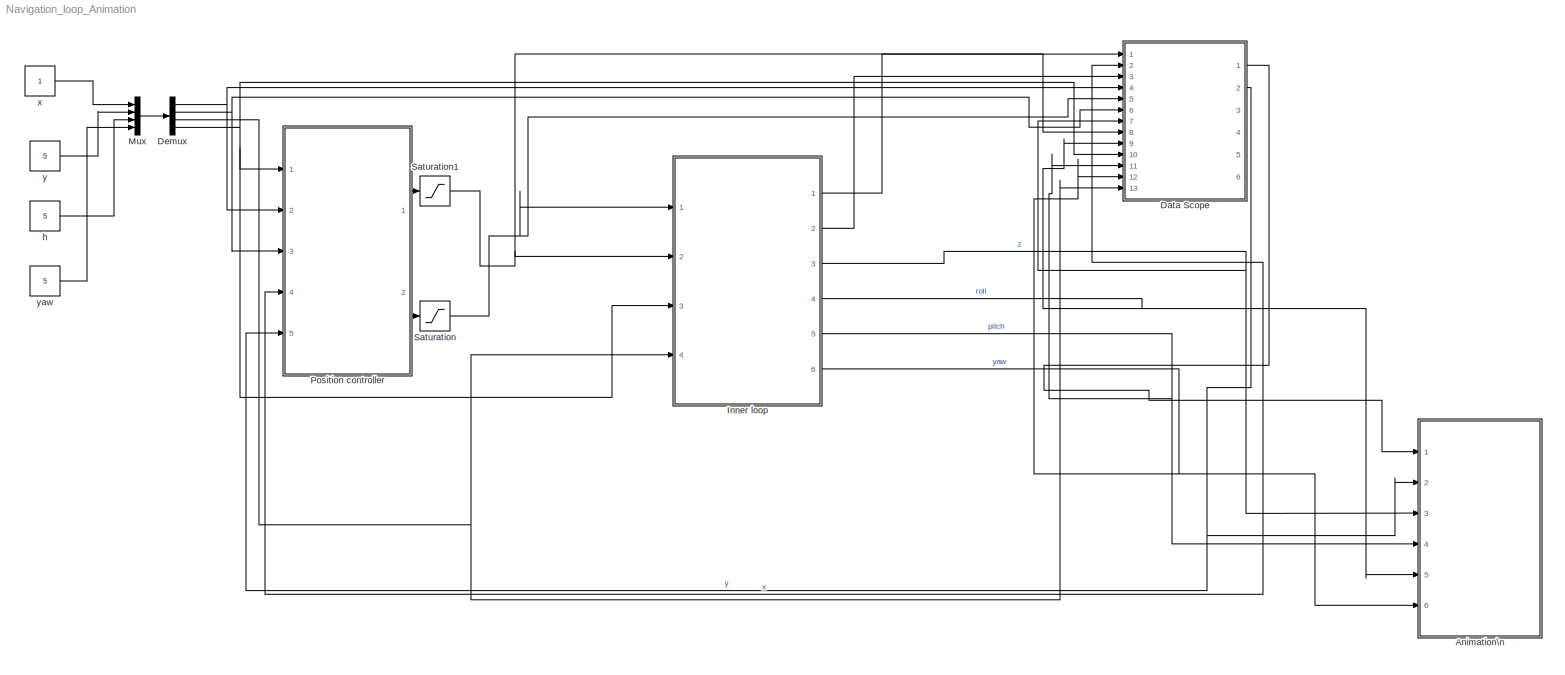
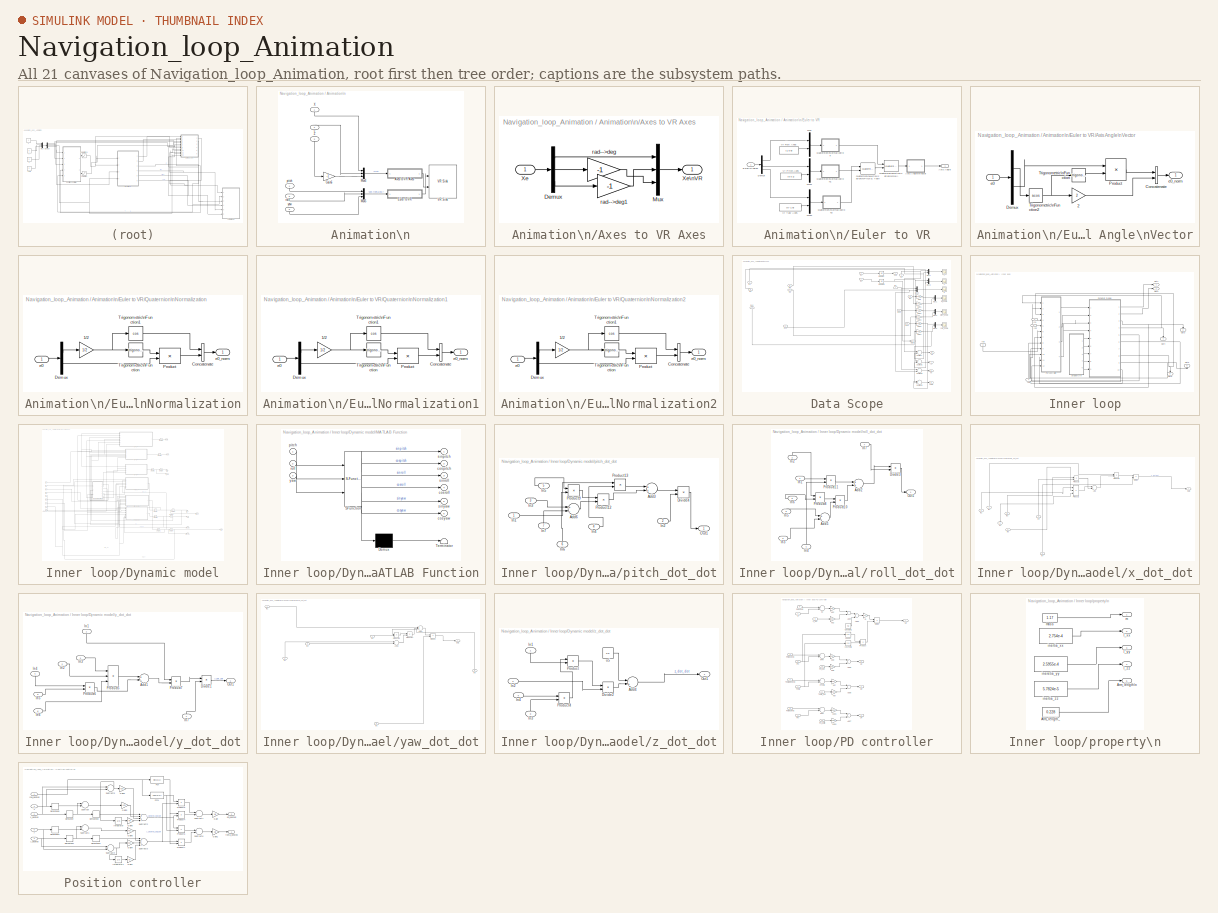
[diagram: thumbnail index - all 21 canvases of the model, root first then tree order]
MODEL Navigation_loop_Animation
KIND model
BLOCK [SubSystem] Animation\n
  Ports = [6]
  RequestExecContextInheritance = off
  SID = 1428
BLOCK [SubSystem] Animation\n/Axes to VR Axes
  Ports = [1, 1]
  RequestExecContextInheritance = off
  SID = 803
BLOCK [Demux] Animation\n/Axes to VR Axes/Demux
  Outputs = 3
  Ports = [1, 3]
  SID = 805
BLOCK [Mux] Animation\n/Axes to VR Axes/Mux
  DisplayOption = bar
  Inputs = 3
  Ports = [3, 1]
  SID = 806
BLOCK [Inport] Animation\n/Axes to VR Axes/Xe
  IconDisplay = Port number
  SID = 804
BLOCK [Outport] Animation\n/Axes to VR Axes/Xe\nVR
  IconDisplay = Port number
  SID = 809
BLOCK [Gain] Animation\n/Axes to VR Axes/rad-->deg
  Gain = -1
  SID = 807
BLOCK [Gain] Animation\n/Axes to VR Axes/rad-->deg1
  Gain = -1
  SID = 808
BLOCK [SubSystem] Animation\n/Euler to VR
  Ports = [1, 1]
  RequestExecContextInheritance = off
  SID = 861
BLOCK [Outport] Animation\n/Euler to VR/Axis Angle
  IconDisplay = Port number
  SID = 908
BLOCK [SubSystem] Animation\n/Euler to VR/Axis Angle\nVector
  Ports = [1, 1]
  RequestExecContextInheritance = off
  SID = 863
BLOCK [Gain] Animation\n/Euler to VR/Axis Angle\nVector/2
  Gain = 2
  SID = 865
BLOCK [Concatenate] Animation\n/Euler to VR/Axis Angle\nVector/Concatenate
  Ports = [2, 1]
  SID = 866
BLOCK [Demux] Animation\n/Euler to VR/Axis Angle\nVector/Demux
  Outputs = [1 3 ]
  Ports = [1, 2]
  SID = 867
BLOCK [Product] Animation\n/Euler to VR/Axis Angle\nVector/Product
  Inputs = */
  Ports = [2, 1]
  RndMeth = Floor
  SID = 868
BLOCK [Trigonometry] Animation\n/Euler to VR/Axis Angle\nVector/Trigonometric\nFunction
  Ports = [1, 1]
  SID = 869
BLOCK [Trigonometry] Animation\n/Euler to VR/Axis Angle\nVector/Trigonometric\nFunction2
  Operator = acos
  Ports = [1, 1]
  SID = 870
BLOCK [Inport] Animation\n/Euler to VR/Axis Angle\nVector/e0
  IconDisplay = Port number
  SID = 864
BLOCK [Outport] Animation\n/Euler to VR/Axis Angle\nVector/e0_norm
  IconDisplay = Port number
  SID = 871
BLOCK [Demux] Animation\n/Euler to VR/Demux
  Outputs = 3
  Ports = [1, 3]
  SID = 872
BLOCK [Inport] Animation\n/Euler to VR/Euler\nAngles
  IconDisplay = Port number
  SID = 862
BLOCK [Mux] Animation\n/Euler to VR/Mux
  DisplayOption = bar
  Inputs = 2
  Ports = [2, 1]
  SID = 873
BLOCK [Mux] Animation\n/Euler to VR/Mux1
  DisplayOption = bar
  Inputs = 2
  Ports = [2, 1]
  SID = 874
BLOCK [Mux] Animation\n/Euler to VR/Mux2
  DisplayOption = bar
  Inputs = 2
  Ports = [2, 1]
  SID = 875
BLOCK [Reference] Animation\n/Euler to VR/Quaternion\nMultiplication\n(Pitch & Yaw)  REF=aerolibutil/Quaternion\nMultiplication
  Ports = [2, 1]
  SID = 876
  SourceBlock = aerolibutil/Quaternion\nMultiplication
  SourceType = Quaternion Multiplication
BLOCK [Reference] Animation\n/Euler to VR/Quaternion\nMultiplication\n(Roll)  REF=aerolibutil/Quaternion\nMultiplication
  Ports = [2, 1]
  SID = 877
  SourceBlock = aerolibutil/Quaternion\nMultiplication
  SourceType = Quaternion Multiplication
BLOCK [SubSystem] Animation\n/Euler to VR/Quaternion\nNormalization
  Ports = [1, 1]
  RequestExecContextInheritance = off
  SID = 878
BLOCK [Gain] Animation\n/Euler to VR/Quaternion\nNormalization/1//2
  Gain = 1/2
  SID = 880
BLOCK [Concatenate] Animation\n/Euler to VR/Quaternion\nNormalization/Concatenate
  Ports = [2, 1]
  SID = 881
BLOCK [Demux] Animation\n/Euler to VR/Quaternion\nNormalization/Demux
  Outputs = [1 3]
  Ports = [1, 2]
  SID = 882
BLOCK [Product] Animation\n/Euler to VR/Quaternion\nNormalization/Product
  Ports = [2, 1]
  RndMeth = Floor
  SID = 883
BLOCK [Trigonometry] Animation\n/Euler to VR/Quaternion\nNormalization/Trigonometric\nFunction
  Ports = [1, 1]
  SID = 884
BLOCK [Trigonometry] Animation\n/Euler to VR/Quaternion\nNormalization/Trigonometric\nFunction1
  Operator = cos
  Ports = [1, 1]
  SID = 885
BLOCK [Inport] Animation\n/Euler to VR/Quaternion\nNormalization/e0
  IconDisplay = Port number
  SID = 879
BLOCK [Outport] Animation\n/Euler to VR/Quaternion\nNormalization/e0_norm
  IconDisplay = Port number
  SID = 886
BLOCK [SubSystem] Animation\n/Euler to VR/Quaternion\nNormalization1
  Ports = [1, 1]
  RequestExecContextInheritance = off
  SID = 887
BLOCK [Gain] Animation\n/Euler to VR/Quaternion\nNormalization1/1//2
  Gain = 1/2
  SID = 889
BLOCK [Concatenate] Animation\n/Euler to VR/Quaternion\nNormalization1/Concatenate
  Ports = [2, 1]
  SID = 890
BLOCK [Demux] Animation\n/Euler to VR/Quaternion\nNormalization1/Demux
  Outputs = [1 3]
  Ports = [1, 2]
  SID = 891
BLOCK [Product] Animation\n/Euler to VR/Quaternion\nNormalization1/Product
  Ports = [2, 1]
  RndMeth = Floor
  SID = 892
BLOCK [Trigonometry] Animation\n/Euler to VR/Quaternion\nNormalization1/Trigonometric\nFunction
  Ports = [1, 1]
  SID = 893
BLOCK [Trigonometry] Animation\n/Euler to VR/Quaternion\nNormalization1/Trigonometric\nFunction1
  Operator = cos
  Ports = [1, 1]
  SID = 894
BLOCK [Inport] Animation\n/Euler to VR/Quaternion\nNormalization1/e0
  IconDisplay = Port number
  SID = 888
BLOCK [Outport] Animation\n/Euler to VR/Quaternion\nNormalization1/e0_norm
  IconDisplay = Port number
  SID = 895
BLOCK [SubSystem] Animation\n/Euler to VR/Quaternion\nNormalization2
  Ports = [1, 1]
  RequestExecContextInheritance = off
  SID = 896
BLOCK [Gain] Animation\n/Euler to VR/Quaternion\nNormalization2/1//2
  Gain = 1/2
  SID = 898
BLOCK [Concatenate] Animation\n/Euler to VR/Quaternion\nNormalization2/Concatenate
  Ports = [2, 1]
  SID = 899
BLOCK [Demux] Animation\n/Euler to VR/Quaternion\nNormalization2/Demux
  Outputs = [1 3]
  Ports = [1, 2]
  SID = 900
BLOCK [Product] Animation\n/Euler to VR/Quaternion\nNormalization2/Product
  Ports = [2, 1]
  RndMeth = Floor
  SID = 901
BLOCK [Trigonometry] Animation\n/Euler to VR/Quaternion\nNormalization2/Trigonometric\nFunction
  Ports = [1, 1]
  SID = 902
BLOCK [Trigonometry] Animation\n/Euler to VR/Quaternion\nNormalization2/Trigonometric\nFunction1
  Operator = cos
  Ports = [1, 1]
  SID = 903
BLOCK [Inport] Animation\n/Euler to VR/Quaternion\nNormalization2/e0
  IconDisplay = Port number
  SID = 897
BLOCK [Outport] Animation\n/Euler to VR/Quaternion\nNormalization2/e0_norm
  IconDisplay = Port number
  SID = 904
BLOCK [Constant] Animation\n/Euler to VR/Vr Pitch Axes
  SID = 905
  Value = [0 0 1]
BLOCK [Constant] Animation\n/Euler to VR/Vr Roll Axes
  SID = 906
  Value = [1 0 0]
BLOCK [Constant] Animation\n/Euler to VR/Vr Yaw Axes
  SID = 907
  Value = [0 -1 0]
BLOCK [Gain] Animation\n/Gain6
  Gain = -1
  OutDataTypeStr = Inherit: Inherit via internal rule
  ParamDataTypeStr = Inherit: Inherit via internal rule
  SID = 915
  SaturateOnIntegerOverflow = off
BLOCK [Mux] Animation\n/Mux4
  DisplayOption = bar
  Inputs = 3
  Ports = [3, 1]
  SID = 485
BLOCK [Mux] Animation\n/Mux5
  DisplayOption = bar
  Inputs = 3
  Ports = [3, 1]
  SID = 486
BLOCK [Reference] Animation\n/VR Sink  REF=vrlib/VR Sink
  AllowVariableSize = off
  AutoView = off
  FieldsWritten = MyAirCraft.rotation.4.1.1.double#MyAirCraft.translation.3.1.1.double
  InstantiateOnLoad = on
  Ports = [2]
  RemoteChange = off
  RemoteView = on
  SID = 860
  SampleTime = 0.1
  SourceBlock = vrlib/VR Sink
  SourceType = Virtual Reality Sink
  VideoDimensions = []
  ViewEnable = on
  WorldFileName = rollTst.wrl
BLOCK [Inport] Animation\n/X
  IconDisplay = Port number
  SID = 1431
BLOCK [Inport] Animation\n/Z
  IconDisplay = Port number
  Port = 3
  SID = 1429
BLOCK [Inport] Animation\n/pitch
  IconDisplay = Port number
  Port = 4
  SID = 1432
BLOCK [Inport] Animation\n/roll
  IconDisplay = Port number
  Port = 5
  SID = 1430
BLOCK [Inport] Animation\n/y
  IconDisplay = Port number
  Port = 2
  SID = 1434
BLOCK [Inport] Animation\n/yaw
  IconDisplay = Port number
  Port = 6
  SID = 1433
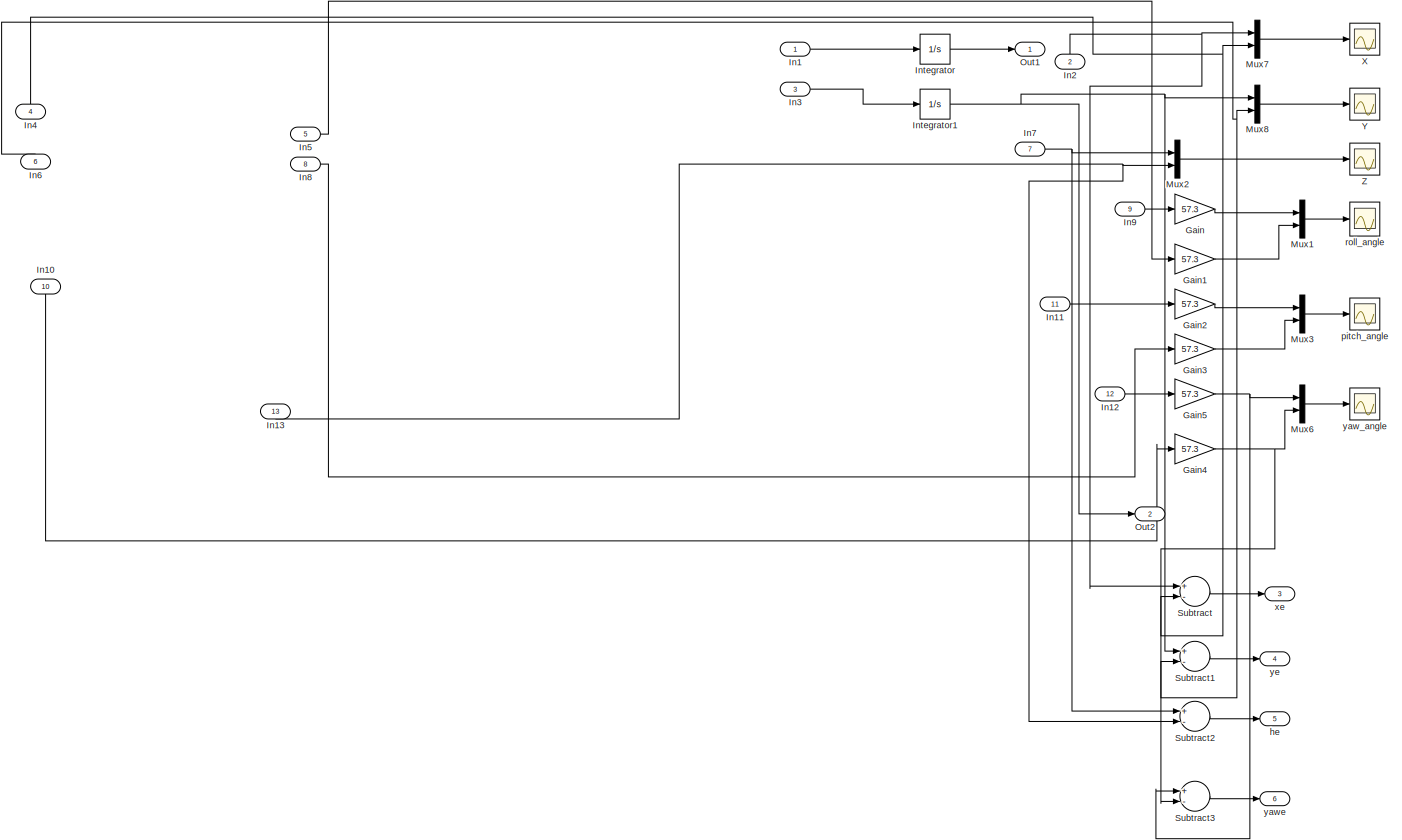
[diagram: Data Scope - part 1/1, most of the canvas]
BLOCK [SubSystem] Data Scope
  Ports = [13, 6]
  RequestExecContextInheritance = off
  SID = 1412
BLOCK [Gain] Data Scope/Gain
  Gain = 57.3
  OutDataTypeStr = Inherit: Inherit via internal rule
  ParamDataTypeStr = Inherit: Inherit via internal rule
  SID = 475
  SaturateOnIntegerOverflow = off
BLOCK [Gain] Data Scope/Gain1
  Gain = 57.3
  OutDataTypeStr = Inherit: Inherit via internal rule
  ParamDataTypeStr = Inherit: Inherit via internal rule
  SID = 1404
  SaturateOnIntegerOverflow = off
BLOCK [Gain] Data Scope/Gain2
  Gain = 57.3
  OutDataTypeStr = Inherit: Inherit via internal rule
  ParamDataTypeStr = Inherit: Inherit via internal rule
  SID = 477
  SaturateOnIntegerOverflow = off
BLOCK [Gain] Data Scope/Gain3
  Gain = 57.3
  OutDataTypeStr = Inherit: Inherit via internal rule
  ParamDataTypeStr = Inherit: Inherit via internal rule
  SID = 1408
  SaturateOnIntegerOverflow = off
BLOCK [Gain] Data Scope/Gain4
  Gain = 57.3
  OutDataTypeStr = Inherit: Inherit via internal rule
  ParamDataTypeStr = Inherit: Inherit via internal rule
  SID = 1409
  SaturateOnIntegerOverflow = off
BLOCK [Gain] Data Scope/Gain5
  Gain = 57.3
  OutDataTypeStr = Inherit: Inherit via internal rule
  ParamDataTypeStr = Inherit: Inherit via internal rule
  SID = 480
  SaturateOnIntegerOverflow = off
BLOCK [Inport] Data Scope/In1
  IconDisplay = Port number
  SID = 1413
BLOCK [Inport] Data Scope/In10
  IconDisplay = Port number
  Port = 10
  SID = 1422
BLOCK [Inport] Data Scope/In11
  IconDisplay = Port number
  Port = 11
  SID = 1423
BLOCK [Inport] Data Scope/In12
  IconDisplay = Port number
  Port = 12
  SID = 1424
BLOCK [Inport] Data Scope/In13
  IconDisplay = Port number
  Port = 13
  SID = 1425
BLOCK [Inport] Data Scope/In2
  IconDisplay = Port number
  Port = 2
  SID = 1414
BLOCK [Inport] Data Scope/In3
  IconDisplay = Port number
  Port = 3
  SID = 1415
BLOCK [Inport] Data Scope/In4
  IconDisplay = Port number
  Port = 4
  SID = 1416
BLOCK [Inport] Data Scope/In5
  IconDisplay = Port number
  Port = 5
  SID = 1417
BLOCK [Inport] Data Scope/In6
  IconDisplay = Port number
  Port = 6
  SID = 1418
BLOCK [Inport] Data Scope/In7
  IconDisplay = Port number
  Port = 7
  SID = 1419
BLOCK [Inport] Data Scope/In8
  IconDisplay = Port number
  Port = 8
  SID = 1420
BLOCK [Inport] Data Scope/In9
  IconDisplay = Port number
  Port = 9
  SID = 1421
BLOCK [Integrator] Data Scope/Integrator
  Ports = [1, 1]
  SID = 443
BLOCK [Integrator] Data Scope/Integrator1
  Ports = [1, 1]
  SID = 444
BLOCK [Mux] Data Scope/Mux1
  DisplayOption = bar
  Inputs = 2
  Ports = [2, 1]
  SID = 1405
BLOCK [Mux] Data Scope/Mux2
  DisplayOption = bar
  Inputs = 2
  Ports = [2, 1]
  SID = 468
BLOCK [Mux] Data Scope/Mux3
  DisplayOption = bar
  Inputs = 2
  Ports = [2, 1]
  SID = 1406
BLOCK [Mux] Data Scope/Mux6
  DisplayOption = bar
  Inputs = 2
  Ports = [2, 1]
  SID = 1407
BLOCK [Mux] Data Scope/Mux7
  DisplayOption = bar
  Inputs = 2
  Ports = [2, 1]
  SID = 1410
BLOCK [Mux] Data Scope/Mux8
  DisplayOption = bar
  Inputs = 2
  Ports = [2, 1]
  SID = 1411
BLOCK [Outport] Data Scope/Out1
  IconDisplay = Port number
  SID = 1426
BLOCK [Outport] Data Scope/Out2
  IconDisplay = Port number
  Port = 2
  SID = 1427
BLOCK [Sum] Data Scope/Subtract
  InputSameDT = off
  Inputs = +-
  OutDataTypeStr = Inherit: Inherit via internal rule
  Ports = [2, 1]
  SID = 1459
  SaturateOnIntegerOverflow = off
BLOCK [Sum] Data Scope/Subtract1
  InputSameDT = off
  Inputs = +-
  OutDataTypeStr = Inherit: Inherit via internal rule
  Ports = [2, 1]
  SID = 1460
  SaturateOnIntegerOverflow = off
BLOCK [Sum] Data Scope/Subtract2
  InputSameDT = off
  Inputs = +-
  OutDataTypeStr = Inherit: Inherit via internal rule
  Ports = [2, 1]
  SID = 1461
  SaturateOnIntegerOverflow = off
BLOCK [Sum] Data Scope/Subtract3
  InputSameDT = off
  Inputs = +-
  OutDataTypeStr = Inherit: Inherit via internal rule
  Ports = [2, 1]
  SID = 1462
  SaturateOnIntegerOverflow = off
BLOCK [Scope] Data Scope/X
  DataFormat = StructureWithTime
  Floating = off
  LimitDataPoints = off
  NumInputPorts = 1
  Ports = [1]
  SID = 441
  SampleTime = 0
  YMax = 10.5019
  YMin = 9.50171
BLOCK [Scope] Data Scope/Y
  DataFormat = StructureWithTime
  Floating = off
  LimitDataPoints = off
  NumInputPorts = 1
  Ports = [1]
  SID = 442
  SampleTime = 0
  SaveName = ScopeData2
  YMax = -50750
  YMin = -53000
BLOCK [Scope] Data Scope/Z
  DataFormat = StructureWithTime
  Floating = off
  LimitDataPoints = off
  NumInputPorts = 1
  Ports = [1]
  SID = 446
  SampleTime = 0
  SaveName = ScopeData3
  YMax = 105
  YMin = 95
BLOCK [Outport] Data Scope/he
  IconDisplay = Port number
  Port = 5
  SID = 1457
BLOCK [Scope] Data Scope/pitch_angle
  DataFormat = StructureWithTime
  Floating = off
  LimitDataPoints = off
  NumInputPorts = 1
  Ports = [1]
  SID = 448
  SampleTime = 0
  SaveName = ScopeData1
BLOCK [Scope] Data Scope/roll_angle
  DataFormat = StructureWithTime
  Floating = off
  LimitDataPoints = off
  NumInputPorts = 1
  Ports = [1]
  SID = 447
  SampleTime = 0
  SaveName = ScopeData4
  YMax = 20
BLOCK [Outport] Data Scope/xe
  IconDisplay = Port number
  Port = 3
  SID = 1455
BLOCK [Scope] Data Scope/yaw_angle
  DataFormat = StructureWithTime
  Floating = off
  LimitDataPoints = off
  NumInputPorts = 1
  Ports = [1]
  SID = 449
  SampleTime = 0
  SaveName = ScopeData5
  YMax = -2.98451
  YMin = -3.29867
BLOCK [Outport] Data Scope/yawe
  IconDisplay = Port number
  Port = 6
  SID = 1458
BLOCK [Outport] Data Scope/ye
  IconDisplay = Port number
  Port = 4
  SID = 1456
BLOCK [Demux] Demux
  DisplayOption = bar
  Ports = [1, 4]
  SID = 1447
BLOCK [SubSystem] Inner loop
  Ports = [4, 6]
  RequestExecContextInheritance = off
  SID = 1435
BLOCK [SubSystem] Inner loop/Dynamic model
  Ports = [9, 10]
  RequestExecContextInheritance = off
  SID = 416
BLOCK [Inport] Inner loop/Dynamic model/Arm_length
  IconDisplay = Port number
  Port = 9
  SID = 425
BLOCK [Inport] Inner loop/Dynamic model/I_xx
  IconDisplay = Port number
  Port = 6
  SID = 422
BLOCK [Inport] Inner loop/Dynamic model/I_yy
  IconDisplay = Port number
  Port = 7
  SID = 423
BLOCK [Inport] Inner loop/Dynamic model/I_zz
  IconDisplay = Port number
  Port = 8
  SID = 424
BLOCK [Integrator] Inner loop/Dynamic model/Integrator
  Ports = [1, 1]
  SID = 182
BLOCK [Integrator] Inner loop/Dynamic model/Integrator1
  Ports = [1, 1]
  SID = 183
BLOCK [Integrator] Inner loop/Dynamic model/Integrator2
  Ports = [1, 1]
  SID = 184
BLOCK [Integrator] Inner loop/Dynamic model/Integrator3
  Ports = [1, 1]
  SID = 185
BLOCK [Integrator] Inner loop/Dynamic model/Integrator4
  Ports = [1, 1]
  SID = 186
BLOCK [Integrator] Inner loop/Dynamic model/Integrator5
  Ports = [1, 1]
  SID = 187
BLOCK [Integrator] Inner loop/Dynamic model/Integrator6
  Ports = [1, 1]
  SID = 188
BLOCK [Integrator] Inner loop/Dynamic model/Integrator7
  Ports = [1, 1]
  SID = 189
BLOCK [Integrator] Inner loop/Dynamic model/Integrator8
  Ports = [1, 1]
  SID = 190
BLOCK [Integrator] Inner loop/Dynamic model/Integrator9
  Ports = [1, 1]
  SID = 191
BLOCK [SubSystem] Inner loop/Dynamic model/MATLAB Function
  ErrorFcn = Stateflow.Translate.translate
  PermitHierarchicalResolution = ExplicitOnly
  Ports = [3, 6]
  RequestExecContextInheritance = off
  SFBlockType = MATLAB Function
  SID = 192
  TreatAsAtomicUnit = on
BLOCK [Demux] Inner loop/Dynamic model/MATLAB Function/ Demux 
  Outputs = 1
  Ports = [1, 1]
  SID = 192::17
BLOCK [S-Function] Inner loop/Dynamic model/MATLAB Function/ SFunction 
  EnableBusSupport = on
  FunctionName = sf_sfun
  PortCounts = [3 7]
  Ports = [3, 7]
  SID = 192::16
  Tag = Stateflow S-Function Navigation_loop_Animation 8
BLOCK [Terminator] Inner loop/Dynamic model/MATLAB Function/ Terminator 
  SID = 192::18
BLOCK [Outport] Inner loop/Dynamic model/MATLAB Function/cospitch
  IconDisplay = Port number
  Port = 2
  SID = 192::21
BLOCK [Outport] Inner loop/Dynamic model/MATLAB Function/cosroll
  IconDisplay = Port number
  Port = 4
  SID = 192::23
BLOCK [Outport] Inner loop/Dynamic model/MATLAB Function/cosyaw
  IconDisplay = Port number
  Port = 6
  SID = 192::25
BLOCK [Inport] Inner loop/Dynamic model/MATLAB Function/pitch
  IconDisplay = Port number
  SID = 192::1
BLOCK [Inport] Inner loop/Dynamic model/MATLAB Function/roll
  IconDisplay = Port number
  Port = 2
  SID = 192::19
BLOCK [Outport] Inner loop/Dynamic model/MATLAB Function/sinpitch
  IconDisplay = Port number
  SID = 192::5
BLOCK [Outport] Inner loop/Dynamic model/MATLAB Function/sinroll
  IconDisplay = Port number
  Port = 3
  SID = 192::22
BLOCK [Outport] Inner loop/Dynamic model/MATLAB Function/sinyaw
  IconDisplay = Port number
  Port = 5
  SID = 192::24
BLOCK [Inport] Inner loop/Dynamic model/MATLAB Function/yaw
  IconDisplay = Port number
  Port = 3
  SID = 192::20
BLOCK [Outport] Inner loop/Dynamic model/X_dot\n
  IconDisplay = Port number
  SID = 426
BLOCK [Outport] Inner loop/Dynamic model/Y_dot
  IconDisplay = Port number
  Port = 2
  SID = 427
BLOCK [Outport] Inner loop/Dynamic model/Z
  IconDisplay = Port number
  Port = 3
  SID = 428
BLOCK [Outport] Inner loop/Dynamic model/Z_dot
  IconDisplay = Port number
  Port = 6
  SID = 431
BLOCK [Inport] Inner loop/Dynamic model/m
  IconDisplay = Port number
  Port = 5
  SID = 421
BLOCK [Outport] Inner loop/Dynamic model/pitch
  IconDisplay = Port number
  Port = 9
  SID = 434
BLOCK [Outport] Inner loop/Dynamic model/pitch_dot
  IconDisplay = Port number
  Port = 10
  SID = 435
BLOCK [SubSystem] Inner loop/Dynamic model/pitch_dot_dot
  Ports = [7, 1]
  RequestExecContextInheritance = off
  SID = 356
BLOCK [Sum] Inner loop/Dynamic model/pitch_dot_dot/Add3
  InputSameDT = off
  OutDataTypeStr = Inherit: Inherit via internal rule
  Ports = [2, 1]
  SID = 201
  SaturateOnIntegerOverflow = off
BLOCK [Sum] Inner loop/Dynamic model/pitch_dot_dot/Add6
  InputSameDT = off
  Inputs = +-
  OutDataTypeStr = Inherit: Inherit via internal rule
  Ports = [2, 1]
  SID = 202
  SaturateOnIntegerOverflow = off
BLOCK [Product] Inner loop/Dynamic model/pitch_dot_dot/Divide4
  InputSameDT = off
  Inputs = */
  OutDataTypeStr = Inherit: Inherit via internal rule
  Ports = [2, 1]
  RndMeth = Floor
  SID = 203
  SaturateOnIntegerOverflow = off
BLOCK [Inport] Inner loop/Dynamic model/pitch_dot_dot/In1
  IconDisplay = Port number
  SID = 357
BLOCK [Inport] Inner loop/Dynamic model/pitch_dot_dot/In2
  IconDisplay = Port number
  Port = 2
  SID = 358
BLOCK [Inport] Inner loop/Dynamic model/pitch_dot_dot/In3
  IconDisplay = Port number
  Port = 3
  SID = 359
BLOCK [Inport] Inner loop/Dynamic model/pitch_dot_dot/In4
  IconDisplay = Port number
  Port = 4
  SID = 360
BLOCK [Inport] Inner loop/Dynamic model/pitch_dot_dot/In5
  IconDisplay = Port number
  Port = 5
  SID = 361
BLOCK [Inport] Inner loop/Dynamic model/pitch_dot_dot/In6
  IconDisplay = Port number
  Port = 6
  SID = 362
BLOCK [Inport] Inner loop/Dynamic model/pitch_dot_dot/In7
  IconDisplay = Port number
  Port = 7
  SID = 363
BLOCK [Outport] Inner loop/Dynamic model/pitch_dot_dot/Out1
  IconDisplay = Port number
  SID = 364
BLOCK [Product] Inner loop/Dynamic model/pitch_dot_dot/Product12
  InputSameDT = off
  OutDataTypeStr = Inherit: Inherit via internal rule
  Ports = [2, 1]
  RndMeth = Floor
  SID = 204
  SaturateOnIntegerOverflow = off
BLOCK [Product] Inner loop/Dynamic model/pitch_dot_dot/Product13
  InputSameDT = off
  OutDataTypeStr = Inherit: Inherit via internal rule
  Ports = [2, 1]
  RndMeth = Floor
  SID = 205
  SaturateOnIntegerOverflow = off
BLOCK [Product] Inner loop/Dynamic model/pitch_dot_dot/Product9
  InputSameDT = off
  OutDataTypeStr = Inherit: Inherit via internal rule
  Ports = [2, 1]
  RndMeth = Floor
  SID = 206
  SaturateOnIntegerOverflow = off
BLOCK [Outport] Inner loop/Dynamic model/roll
  IconDisplay = Port number
  Port = 4
  SID = 429
BLOCK [Outport] Inner loop/Dynamic model/roll_dot
  IconDisplay = Port number
  Port = 5
  SID = 430
BLOCK [SubSystem] Inner loop/Dynamic model/roll_dot_dot
  Ports = [7, 1]
  RequestExecContextInheritance = off
  SID = 337
BLOCK [Sum] Inner loop/Dynamic model/roll_dot_dot/Add2
  InputSameDT = off
  OutDataTypeStr = Inherit: Inherit via internal rule
  Ports = [2, 1]
  SID = 216
  SaturateOnIntegerOverflow = off
BLOCK [Sum] Inner loop/Dynamic model/roll_dot_dot/Add5
  InputSameDT = off
  Inputs = +-
  OutDataTypeStr = Inherit: Inherit via internal rule
  Ports = [2, 1]
  SID = 217
  SaturateOnIntegerOverflow = off
BLOCK [Product] Inner loop/Dynamic model/roll_dot_dot/Divide3
  InputSameDT = off
  Inputs = */
  OutDataTypeStr = Inherit: Inherit via internal rule
  Ports = [2, 1]
  RndMeth = Floor
  SID = 218
  SaturateOnIntegerOverflow = off
BLOCK [Inport] Inner loop/Dynamic model/roll_dot_dot/In1
  IconDisplay = Port number
  SID = 338
BLOCK [Inport] Inner loop/Dynamic model/roll_dot_dot/In2
  IconDisplay = Port number
  Port = 2
  SID = 339
BLOCK [Inport] Inner loop/Dynamic model/roll_dot_dot/In3
  IconDisplay = Port number
  Port = 3
  SID = 340
BLOCK [Inport] Inner loop/Dynamic model/roll_dot_dot/In4
  IconDisplay = Port number
  Port = 4
  SID = 341
BLOCK [Inport] Inner loop/Dynamic model/roll_dot_dot/In5
  IconDisplay = Port number
  Port = 5
  SID = 342
BLOCK [Inport] Inner loop/Dynamic model/roll_dot_dot/In6
  IconDisplay = Port number
  Port = 6
  SID = 343
BLOCK [Inport] Inner loop/Dynamic model/roll_dot_dot/In7
  IconDisplay = Port number
  Port = 7
  SID = 344
BLOCK [Outport] Inner loop/Dynamic model/roll_dot_dot/Out1
  IconDisplay = Port number
  SID = 345
BLOCK [Product] Inner loop/Dynamic model/roll_dot_dot/Product10
  InputSameDT = off
  OutDataTypeStr = Inherit: Inherit via internal rule
  Ports = [2, 1]
  RndMeth = Floor
  SID = 219
  SaturateOnIntegerOverflow = off
BLOCK [Product] Inner loop/Dynamic model/roll_dot_dot/Product11
  InputSameDT = off
  OutDataTypeStr = Inherit: Inherit via internal rule
  Ports = [2, 1]
  RndMeth = Floor
  SID = 220
  SaturateOnIntegerOverflow = off
BLOCK [Product] Inner loop/Dynamic model/roll_dot_dot/Product8
  InputSameDT = off
  OutDataTypeStr = Inherit: Inherit via internal rule
  Ports = [2, 1]
  RndMeth = Floor
  SID = 221
  SaturateOnIntegerOverflow = off
BLOCK [Inport] Inner loop/Dynamic model/u1
  IconDisplay = Port number
  SID = 417
BLOCK [Inport] Inner loop/Dynamic model/u2
  IconDisplay = Port number
  Port = 2
  SID = 418
BLOCK [Inport] Inner loop/Dynamic model/u3
  IconDisplay = Port number
  Port = 3
  SID = 419
BLOCK [Inport] Inner loop/Dynamic model/u4
  IconDisplay = Port number
  Port = 4
  SID = 420
BLOCK [SubSystem] Inner loop/Dynamic model/x_dot_dot
  Ports = [7, 1]
  RequestExecContextInheritance = off
  SID = 391
BLOCK [Sum] Inner loop/Dynamic model/x_dot_dot/Add
  InputSameDT = off
  OutDataTypeStr = Inherit: Inherit via internal rule
  Ports = [2, 1]
  SID = 231
  SaturateOnIntegerOverflow = off
BLOCK [Product] Inner loop/Dynamic model/x_dot_dot/Divide
  InputSameDT = off
  Inputs = */
  OutDataTypeStr = Inherit: Inherit via internal rule
  Ports = [2, 1]
  RndMeth = Floor
  SID = 232
  SaturateOnIntegerOverflow = off
BLOCK [Inport] Inner loop/Dynamic model/x_dot_dot/In1
  IconDisplay = Port number
  SID = 392
BLOCK [Inport] Inner loop/Dynamic model/x_dot_dot/In2
  IconDisplay = Port number
  Port = 2
  SID = 393
BLOCK [Inport] Inner loop/Dynamic model/x_dot_dot/In3
  IconDisplay = Port number
  Port = 3
  SID = 394
BLOCK [Inport] Inner loop/Dynamic model/x_dot_dot/In4
  IconDisplay = Port number
  Port = 4
  SID = 395
BLOCK [Inport] Inner loop/Dynamic model/x_dot_dot/In5
  IconDisplay = Port number
  Port = 5
  SID = 396
BLOCK [Inport] Inner loop/Dynamic model/x_dot_dot/In6
  IconDisplay = Port number
  Port = 6
  SID = 397
BLOCK [Inport] Inner loop/Dynamic model/x_dot_dot/In7
  IconDisplay = Port number
  Port = 7
  SID = 398
BLOCK [Outport] Inner loop/Dynamic model/x_dot_dot/Out1
  IconDisplay = Port number
  SID = 399
BLOCK [Product] Inner loop/Dynamic model/x_dot_dot/Product1
  InputSameDT = off
  Inputs = 3
  OutDataTypeStr = Inherit: Inherit via internal rule
  Ports = [3, 1]
  RndMeth = Floor
  SID = 233
  SaturateOnIntegerOverflow = off
BLOCK [Product] Inner loop/Dynamic model/x_dot_dot/Product2
  InputSameDT = off
  OutDataTypeStr = Inherit: Inherit via internal rule
  Ports = [2, 1]
  RndMeth = Floor
  SID = 234
  SaturateOnIntegerOverflow = off
BLOCK [Product] Inner loop/Dynamic model/x_dot_dot/Product3
  InputSameDT = off
  OutDataTypeStr = Inherit: Inherit via internal rule
  Ports = [2, 1]
  RndMeth = Floor
  SID = 235
  SaturateOnIntegerOverflow = off
BLOCK [SubSystem] Inner loop/Dynamic model/y_dot_dot
  Ports = [7, 1]
  RequestExecContextInheritance = off
  SID = 320
BLOCK [Sum] Inner loop/Dynamic model/y_dot_dot/Add1
  InputSameDT = off
  Inputs = +-
  OutDataTypeStr = Inherit: Inherit via internal rule
  Ports = [2, 1]
  SID = 245
  SaturateOnIntegerOverflow = off
BLOCK [Product] Inner loop/Dynamic model/y_dot_dot/Divide1
  InputSameDT = off
  Inputs = */
  OutDataTypeStr = Inherit: Inherit via internal rule
  Ports = [2, 1]
  RndMeth = Floor
  SID = 246
  SaturateOnIntegerOverflow = off
BLOCK [Inport] Inner loop/Dynamic model/y_dot_dot/In1
  IconDisplay = Port number
  SID = 321
BLOCK [Inport] Inner loop/Dynamic model/y_dot_dot/In2
  IconDisplay = Port number
  Port = 2
  SID = 322
BLOCK [Inport] Inner loop/Dynamic model/y_dot_dot/In3
  IconDisplay = Port number
  Port = 3
  SID = 323
BLOCK [Inport] Inner loop/Dynamic model/y_dot_dot/In4
  IconDisplay = Port number
  Port = 4
  SID = 324
BLOCK [Inport] Inner loop/Dynamic model/y_dot_dot/In5
  IconDisplay = Port number
  Port = 5
  SID = 325
BLOCK [Inport] Inner loop/Dynamic model/y_dot_dot/In6
  IconDisplay = Port number
  Port = 6
  SID = 326
BLOCK [Inport] Inner loop/Dynamic model/y_dot_dot/In7
  IconDisplay = Port number
  Port = 7
  SID = 327
BLOCK [Outport] Inner loop/Dynamic model/y_dot_dot/Out1
  IconDisplay = Port number
  SID = 328
BLOCK [Product] Inner loop/Dynamic model/y_dot_dot/Product5
  InputSameDT = off
  Inputs = 3
  OutDataTypeStr = Inherit: Inherit via internal rule
  Ports = [3, 1]
  RndMeth = Floor
  SID = 247
  SaturateOnIntegerOverflow = off
BLOCK [Product] Inner loop/Dynamic model/y_dot_dot/Product6
  InputSameDT = off
  OutDataTypeStr = Inherit: Inherit via internal rule
  Ports = [2, 1]
  RndMeth = Floor
  SID = 248
  SaturateOnIntegerOverflow = off
BLOCK [Product] Inner loop/Dynamic model/y_dot_dot/Product7
  InputSameDT = off
  OutDataTypeStr = Inherit: Inherit via internal rule
  Ports = [2, 1]
  RndMeth = Floor
  SID = 249
  SaturateOnIntegerOverflow = off
BLOCK [Outport] Inner loop/Dynamic model/yaw
  IconDisplay = Port number
  Port = 8
  SID = 433
BLOCK [Outport] Inner loop/Dynamic model/yaw_dot
  IconDisplay = Port number
  Port = 7
  SID = 432
BLOCK [SubSystem] Inner loop/Dynamic model/yaw_dot_dot
  Ports = [6, 1]
  RequestExecContextInheritance = off
  SID = 405
BLOCK [Sum] Inner loop/Dynamic model/yaw_dot_dot/Add7
  InputSameDT = off
  OutDataTypeStr = Inherit: Inherit via internal rule
  Ports = [2, 1]
  SID = 259
  SaturateOnIntegerOverflow = off
BLOCK [Sum] Inner loop/Dynamic model/yaw_dot_dot/Add8
  InputSameDT = off
  Inputs = +-
  OutDataTypeStr = Inherit: Inherit via internal rule
  Ports = [2, 1]
  SID = 260
  SaturateOnIntegerOverflow = off
BLOCK [Product] Inner loop/Dynamic model/yaw_dot_dot/Divide5
  InputSameDT = off
  Inputs = */
  OutDataTypeStr = Inherit: Inherit via internal rule
  Ports = [2, 1]
  RndMeth = Floor
  SID = 261
  SaturateOnIntegerOverflow = off
BLOCK [Inport] Inner loop/Dynamic model/yaw_dot_dot/In1
  IconDisplay = Port number
  SID = 406
BLOCK [Inport] Inner loop/Dynamic model/yaw_dot_dot/In2
  IconDisplay = Port number
  Port = 2
  SID = 407
BLOCK [Inport] Inner loop/Dynamic model/yaw_dot_dot/In3
  IconDisplay = Port number
  Port = 3
  SID = 408
BLOCK [Inport] Inner loop/Dynamic model/yaw_dot_dot/In4
  IconDisplay = Port number
  Port = 4
  SID = 409
BLOCK [Inport] Inner loop/Dynamic model/yaw_dot_dot/In5
  IconDisplay = Port number
  Port = 5
  SID = 410
BLOCK [Inport] Inner loop/Dynamic model/yaw_dot_dot/In6
  IconDisplay = Port number
  Port = 6
  SID = 411
BLOCK [Outport] Inner loop/Dynamic model/yaw_dot_dot/Out1
  IconDisplay = Port number
  SID = 412
BLOCK [Product] Inner loop/Dynamic model/yaw_dot_dot/Product14
  InputSameDT = off
  OutDataTypeStr = Inherit: Inherit via internal rule
  Ports = [2, 1]
  RndMeth = Floor
  SID = 262
  SaturateOnIntegerOverflow = off
BLOCK [Product] Inner loop/Dynamic model/yaw_dot_dot/Product15
  InputSameDT = off
  OutDataTypeStr = Inherit: Inherit via internal rule
  Ports = [2, 1]
  RndMeth = Floor
  SID = 263
  SaturateOnIntegerOverflow = off
BLOCK [SubSystem] Inner loop/Dynamic model/z_dot_dot
  Ports = [4, 1]
  RequestExecContextInheritance = off
  SID = 330
BLOCK [Sum] Inner loop/Dynamic model/z_dot_dot/Add4
  InputSameDT = off
  Inputs = -+
  OutDataTypeStr = Inherit: Inherit via internal rule
  Ports = [2, 1]
  SID = 270
  SaturateOnIntegerOverflow = off
BLOCK [Product] Inner loop/Dynamic model/z_dot_dot/Divide2
  InputSameDT = off
  Inputs = */
  OutDataTypeStr = Inherit: Inherit via internal rule
  Ports = [2, 1]
  RndMeth = Floor
  SID = 271
  SaturateOnIntegerOverflow = off
BLOCK [Inport] Inner loop/Dynamic model/z_dot_dot/In1
  IconDisplay = Port number
  SID = 331
BLOCK [Inport] Inner loop/Dynamic model/z_dot_dot/In2
  IconDisplay = Port number
  Port = 2
  SID = 332
BLOCK [Inport] Inner loop/Dynamic model/z_dot_dot/In3
  IconDisplay = Port number
  Port = 3
  SID = 333
BLOCK [Inport] Inner loop/Dynamic model/z_dot_dot/In4
  IconDisplay = Port number
  Port = 4
  SID = 334
BLOCK [Outport] Inner loop/Dynamic model/z_dot_dot/Out1
  IconDisplay = Port number
  SID = 335
BLOCK [Product] Inner loop/Dynamic model/z_dot_dot/Product
  InputSameDT = off
  OutDataTypeStr = Inherit: Inherit via internal rule
  Ports = [2, 1]
  RndMeth = Floor
  SID = 272
  SaturateOnIntegerOverflow = off
BLOCK [Product] Inner loop/Dynamic model/z_dot_dot/Product4
  InputSameDT = off
  OutDataTypeStr = Inherit: Inherit via internal rule
  Ports = [2, 1]
  RndMeth = Floor
  SID = 273
  SaturateOnIntegerOverflow = off
BLOCK [Constant] Inner loop/Dynamic model/z_dot_dot/u5
  SID = 274
  Value = 9.8
BLOCK [Inport] Inner loop/In1
  IconDisplay = Port number
  SID = 1436
BLOCK [Inport] Inner loop/In2
  IconDisplay = Port number
  Port = 2
  SID = 1437
BLOCK [Inport] Inner loop/In3
  IconDisplay = Port number
  Port = 3
  SID = 1438
BLOCK [Inport] Inner loop/In4
  IconDisplay = Port number
  Port = 4
  SID = 1439
BLOCK [Outport] Inner loop/Out1
  IconDisplay = Port number
  SID = 1440
BLOCK [Outport] Inner loop/Out2
  IconDisplay = Port number
  Port = 2
  SID = 1441
BLOCK [Outport] Inner loop/Out3
  IconDisplay = Port number
  Port = 3
  SID = 1442
BLOCK [Outport] Inner loop/Out4
  IconDisplay = Port number
  Port = 4
  SID = 1443
BLOCK [Outport] Inner loop/Out5
  IconDisplay = Port number
  Port = 5
  SID = 1444
BLOCK [Outport] Inner loop/Out6
  IconDisplay = Port number
  Port = 6
  SID = 1445
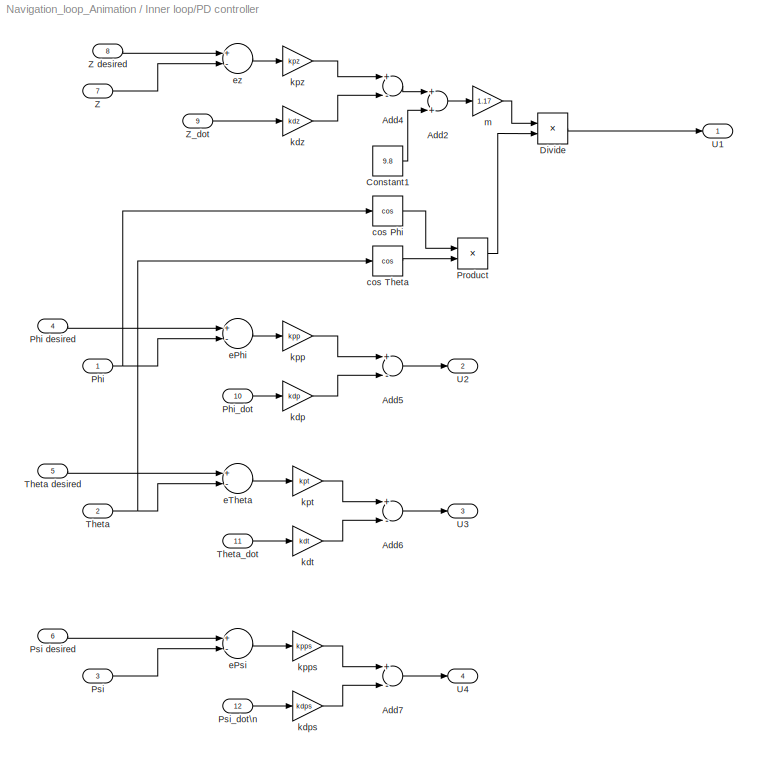
BLOCK [SubSystem] Inner loop/PD controller
  Ports = [12, 4]
  RequestExecContextInheritance = off
  SID = 5
BLOCK [Sum] Inner loop/PD controller/Add2
  InputSameDT = off
  OutDataTypeStr = Inherit: Inherit via internal rule
  Ports = [2, 1]
  SID = 380
  SaturateOnIntegerOverflow = off
BLOCK [Sum] Inner loop/PD controller/Add4
  InputSameDT = off
  Inputs = +-
  OutDataTypeStr = Inherit: Inherit via internal rule
  Ports = [2, 1]
  SID = 15
  SaturateOnIntegerOverflow = off
BLOCK [Sum] Inner loop/PD controller/Add5
  InputSameDT = off
  Inputs = +-
  OutDataTypeStr = Inherit: Inherit via internal rule
  Ports = [2, 1]
  SID = 16
  SaturateOnIntegerOverflow = off
BLOCK [Sum] Inner loop/PD controller/Add6
  InputSameDT = off
  Inputs = +-
  OutDataTypeStr = Inherit: Inherit via internal rule
  Ports = [2, 1]
  SID = 17
  SaturateOnIntegerOverflow = off
BLOCK [Sum] Inner loop/PD controller/Add7
  InputSameDT = off
  Inputs = +-
  OutDataTypeStr = Inherit: Inherit via internal rule
  Ports = [2, 1]
  SID = 18
  SaturateOnIntegerOverflow = off
BLOCK [Constant] Inner loop/PD controller/Constant1
  SID = 381
  Value = 9.8
BLOCK [Product] Inner loop/PD controller/Divide
  InputSameDT = off
  Inputs = */
  OutDataTypeStr = Inherit: Inherit via internal rule
  Ports = [2, 1]
  RndMeth = Floor
  SID = 24
  SaturateOnIntegerOverflow = off
BLOCK [Inport] Inner loop/PD controller/Phi
  IconDisplay = Port number
  SID = 6
BLOCK [Inport] Inner loop/PD controller/Phi desired
  IconDisplay = Port number
  Port = 4
  SID = 9
BLOCK [Inport] Inner loop/PD controller/Phi_dot
  IconDisplay = Port number
  Port = 10
  SID = 437
BLOCK [Product] Inner loop/PD controller/Product
  InputSameDT = off
  OutDataTypeStr = Inherit: Inherit via internal rule
  Ports = [2, 1]
  SID = 25
  SaturateOnIntegerOverflow = off
BLOCK [Inport] Inner loop/PD controller/Psi
  IconDisplay = Port number
  Port = 3
  SID = 8
BLOCK [Inport] Inner loop/PD controller/Psi desired
  IconDisplay = Port number
  Port = 6
  SID = 11
BLOCK [Inport] Inner loop/PD controller/Psi_dot\n
  IconDisplay = Port number
  Port = 12
  SID = 440
BLOCK [Inport] Inner loop/PD controller/Theta
  IconDisplay = Port number
  Port = 2
  SID = 7
BLOCK [Inport] Inner loop/PD controller/Theta desired
  IconDisplay = Port number
  Port = 5
  SID = 10
BLOCK [Inport] Inner loop/PD controller/Theta_dot
  IconDisplay = Port number
  Port = 11
  SID = 438
BLOCK [Outport] Inner loop/PD controller/U1
  IconDisplay = Port number
  SID = 41
BLOCK [Outport] Inner loop/PD controller/U2
  IconDisplay = Port number
  Port = 2
  SID = 42
BLOCK [Outport] Inner loop/PD controller/U3
  IconDisplay = Port number
  Port = 3
  SID = 43
BLOCK [Outport] Inner loop/PD controller/U4
  IconDisplay = Port number
  Port = 4
  SID = 44
BLOCK [Inport] Inner loop/PD controller/Z
  IconDisplay = Port number
  Port = 7
  SID = 12
BLOCK [Inport] Inner loop/PD controller/Z desired
  IconDisplay = Port number
  Port = 8
  SID = 13
BLOCK [Inport] Inner loop/PD controller/Z_dot
  IconDisplay = Port number
  Port = 9
  SID = 436
BLOCK [Trigonometry] Inner loop/PD controller/cos Phi
  Operator = cos
  Ports = [1, 1]
  SID = 26
BLOCK [Trigonometry] Inner loop/PD controller/cos Theta
  Operator = cos
  Ports = [1, 1]
  SID = 27
BLOCK [Sum] Inner loop/PD controller/ePhi
  InputSameDT = off
  Inputs = +-
  OutDataTypeStr = Inherit: Inherit via internal rule
  Ports = [2, 1]
  SID = 28
  SaturateOnIntegerOverflow = off
BLOCK [Sum] Inner loop/PD controller/ePsi
  InputSameDT = off
  Inputs = +-
  OutDataTypeStr = Inherit: Inherit via internal rule
  Ports = [2, 1]
  SID = 29
  SaturateOnIntegerOverflow = off
BLOCK [Sum] Inner loop/PD controller/eTheta
  InputSameDT = off
  Inputs = +-
  OutDataTypeStr = Inherit: Inherit via internal rule
  Ports = [2, 1]
  SID = 30
  SaturateOnIntegerOverflow = off
BLOCK [Sum] Inner loop/PD controller/ez
  InputSameDT = off
  Inputs = +-
  OutDataTypeStr = Inherit: Inherit via internal rule
  Ports = [2, 1]
  SID = 31
  SaturateOnIntegerOverflow = off
BLOCK [Gain] Inner loop/PD controller/kdp
  Gain = kdp
  OutDataTypeStr = Inherit: Inherit via internal rule
  ParamDataTypeStr = Inherit: Inherit via internal rule
  SID = 32
  SaturateOnIntegerOverflow = off
BLOCK [Gain] Inner loop/PD controller/kdps
  Gain = kdps
  OutDataTypeStr = Inherit: Inherit via internal rule
  ParamDataTypeStr = Inherit: Inherit via internal rule
  SID = 33
  SaturateOnIntegerOverflow = off
BLOCK [Gain] Inner loop/PD controller/kdt
  Gain = kdt
  OutDataTypeStr = Inherit: Inherit via internal rule
  ParamDataTypeStr = Inherit: Inherit via internal rule
  SID = 34
  SaturateOnIntegerOverflow = off
BLOCK [Gain] Inner loop/PD controller/kdz
  Gain = kdz
  OutDataTypeStr = Inherit: Inherit via internal rule
  ParamDataTypeStr = Inherit: Inherit via internal rule
  SID = 35
  SaturateOnIntegerOverflow = off
BLOCK [Gain] Inner loop/PD controller/kpp
  Gain = kpp
  OutDataTypeStr = Inherit: Inherit via internal rule
  ParamDataTypeStr = Inherit: Inherit via internal rule
  SID = 36
  SaturateOnIntegerOverflow = off
BLOCK [Gain] Inner loop/PD controller/kpps
  Gain = kpps
  OutDataTypeStr = Inherit: Inherit via internal rule
  ParamDataTypeStr = Inherit: Inherit via internal rule
  SID = 37
  SaturateOnIntegerOverflow = off
BLOCK [Gain] Inner loop/PD controller/kpt
  Gain = kpt
  OutDataTypeStr = Inherit: Inherit via internal rule
  ParamDataTypeStr = Inherit: Inherit via internal rule
  SID = 38
  SaturateOnIntegerOverflow = off
BLOCK [Gain] Inner loop/PD controller/kpz
  Gain = kpz
  OutDataTypeStr = Inherit: Inherit via internal rule
  ParamDataTypeStr = Inherit: Inherit via internal rule
  SID = 39
  SaturateOnIntegerOverflow = off
BLOCK [Gain] Inner loop/PD controller/m
  Gain = 1.17
  OutDataTypeStr = Inherit: Inherit via internal rule
  ParamDataTypeStr = Inherit: Inherit via internal rule
  SID = 40
  SaturateOnIntegerOverflow = off
BLOCK [SubSystem] Inner loop/property\n
  Ports = [0, 5]
  RequestExecContextInheritance = off
  SID = 374
BLOCK [Outport] Inner loop/property\n/Arm_length\n
  IconDisplay = Port number
  Port = 5
  SID = 379
BLOCK [Constant] Inner loop/property\n/Arm_length_
  SID = 289
  Value = 0.228
BLOCK [Outport] Inner loop/property\n/I_xx
  IconDisplay = Port number
  Port = 2
  SID = 376
BLOCK [Outport] Inner loop/property\n/I_yy
  IconDisplay = Port number
  Port = 3
  SID = 377
BLOCK [Outport] Inner loop/property\n/I_zz
  IconDisplay = Port number
  Port = 4
  SID = 378
BLOCK [Constant] Inner loop/property\n/ineretia_yy
  SID = 290
  Value = 2.5955e-4
BLOCK [Constant] Inner loop/property\n/inertia_xx
  SID = 291
  Value = 2.754e-4
BLOCK [Constant] Inner loop/property\n/inertia_zz
  SID = 288
  Value = 5.7824e-5
BLOCK [Outport] Inner loop/property\n/m
  IconDisplay = Port number
  SID = 375
BLOCK [Constant] Inner loop/property\n/mass
  SID = 292
  Value = 1.17
BLOCK [Mux] Mux
  DisplayOption = bar
  Ports = [4, 1]
  SID = 1448
BLOCK [SubSystem] Position controller
  Ports = [5, 2]
  RequestExecContextInheritance = off
  SID = 1356
BLOCK [Derivative] Position controller/Derivative
  SID = 1362
BLOCK [Derivative] Position controller/Derivative1
  SID = 1363
BLOCK [Derivative] Position controller/Derivative2
  SID = 1364
BLOCK [Derivative] Position controller/Derivative3
  SID = 1365
BLOCK [Derivative] Position controller/Derivative4
  SID = 1366
BLOCK [Derivative] Position controller/Derivative5
  SID = 1367
BLOCK [Fcn] Position controller/Fcn
  Expr = sin(u(1))
  SID = 1368
BLOCK [Fcn] Position controller/Fcn1
  Expr = cos(u(1))
  SID = 1369
BLOCK [Gain] Position controller/Gain
  Gain = 1/g
  OutDataTypeStr = Inherit: Inherit via internal rule
  ParamDataTypeStr = Inherit: Inherit via internal rule
  SID = 1370
  SaturateOnIntegerOverflow = off
BLOCK [Gain] Position controller/Gain1
  Gain = 1/g
  OutDataTypeStr = Inherit: Inherit via internal rule
  ParamDataTypeStr = Inherit: Inherit via internal rule
  SID = 1371
  SaturateOnIntegerOverflow = off
BLOCK [Gain] Position controller/Gain2
  Gain = kpx
  OutDataTypeStr = Inherit: Inherit via internal rule
  ParamDataTypeStr = Inherit: Inherit via internal rule
  SID = 1372
  SaturateOnIntegerOverflow = off
BLOCK [Gain] Position controller/Gain3
  Gain = kdx
  OutDataTypeStr = Inherit: Inherit via internal rule
  ParamDataTypeStr = Inherit: Inherit via internal rule
  SID = 1373
  SaturateOnIntegerOverflow = off
BLOCK [Gain] Position controller/Gain4
  Gain = kpy
  OutDataTypeStr = Inherit: Inherit via internal rule
  ParamDataTypeStr = Inherit: Inherit via internal rule
  SID = 1374
  SaturateOnIntegerOverflow = off
BLOCK [Gain] Position controller/Gain5
  Gain = kdy
  OutDataTypeStr = Inherit: Inherit via internal rule
  ParamDataTypeStr = Inherit: Inherit via internal rule
  SID = 1375
  SaturateOnIntegerOverflow = off
BLOCK [Gain] Position controller/Gain6
  Gain = kix
  OutDataTypeStr = Inherit: Inherit via internal rule
  ParamDataTypeStr = Inherit: Inherit via internal rule
  SID = 1376
  SaturateOnIntegerOverflow = off
BLOCK [Gain] Position controller/Gain7
  Gain = kiy
  OutDataTypeStr = Inherit: Inherit via internal rule
  ParamDataTypeStr = Inherit: Inherit via internal rule
  SID = 1377
  SaturateOnIntegerOverflow = off
BLOCK [Integrator] Position controller/Integrator
  Ports = [1, 1]
  SID = 1378
BLOCK [Integrator] Position controller/Integrator1
  Ports = [1, 1]
  SID = 1379
BLOCK [Product] Position controller/Product4
  InputSameDT = off
  OutDataTypeStr = Inherit: Inherit via internal rule
  Ports = [2, 1]
  RndMeth = Floor
  SID = 1381
  SaturateOnIntegerOverflow = off
BLOCK [Product] Position controller/Product5
  InputSameDT = off
  OutDataTypeStr = Inherit: Inherit via internal rule
  Ports = [2, 1]
  RndMeth = Floor
  SID = 1382
  SaturateOnIntegerOverflow = off
BLOCK [Product] Position controller/Product6
  InputSameDT = off
  OutDataTypeStr = Inherit: Inherit via internal rule
  Ports = [2, 1]
  RndMeth = Floor
  SID = 1383
  SaturateOnIntegerOverflow = off
BLOCK [Product] Position controller/Product7
  InputSameDT = off
  OutDataTypeStr = Inherit: Inherit via internal rule
  Ports = [2, 1]
  RndMeth = Floor
  SID = 1384
  SaturateOnIntegerOverflow = off
BLOCK [Sum] Position controller/Subtract
  InputSameDT = off
  Inputs = +-
  OutDataTypeStr = Inherit: Inherit via internal rule
  Ports = [2, 1]
  SID = 1385
  SaturateOnIntegerOverflow = off
BLOCK [Sum] Position controller/Subtract1
  InputSameDT = off
  Inputs = +-
  OutDataTypeStr = Inherit: Inherit via internal rule
  Ports = [2, 1]
  SID = 1386
  SaturateOnIntegerOverflow = off
BLOCK [Sum] Position controller/Subtract2
  InputSameDT = off
  Inputs = ++++
  OutDataTypeStr = Inherit: Inherit via internal rule
  Ports = [4, 1]
  SID = 1387
  SaturateOnIntegerOverflow = off
BLOCK [Sum] Position controller/Subtract3
  InputSameDT = off
  Inputs = ++++
  OutDataTypeStr = Inherit: Inherit via internal rule
  Ports = [4, 1]
  SID = 1388
  SaturateOnIntegerOverflow = off
BLOCK [Sum] Position controller/Subtract4
  InputSameDT = off
  Inputs = +-
  OutDataTypeStr = Inherit: Inherit via internal rule
  Ports = [2, 1]
  SID = 1389
  SaturateOnIntegerOverflow = off
BLOCK [Sum] Position controller/Subtract5
  InputSameDT = off
  Inputs = +-
  OutDataTypeStr = Inherit: Inherit via internal rule
  Ports = [2, 1]
  SID = 1390
  SaturateOnIntegerOverflow = off
BLOCK [Sum] Position controller/Subtract6
  InputSameDT = off
  OutDataTypeStr = Inherit: Inherit via internal rule
  Ports = [2, 1]
  SID = 1391
  SaturateOnIntegerOverflow = off
BLOCK [Sum] Position controller/Subtract7
  InputSameDT = off
  Inputs = -+
  OutDataTypeStr = Inherit: Inherit via internal rule
  Ports = [2, 1]
  SID = 1392
  SaturateOnIntegerOverflow = off
BLOCK [Outport] Position controller/phi_desired
  IconDisplay = Port number
  Port = 2
  SID = 1394
BLOCK [Outport] Position controller/theta_desired
  IconDisplay = Port number
  SID = 1393
BLOCK [Inport] Position controller/x
  IconDisplay = Port number
  Port = 4
  SID = 1360
BLOCK [Inport] Position controller/x_desired
  IconDisplay = Port number
  Port = 2
  SID = 1358
BLOCK [Inport] Position controller/y
  IconDisplay = Port number
  Port = 5
  SID = 1361
BLOCK [Inport] Position controller/y_desired
  IconDisplay = Port number
  Port = 3
  SID = 1359
BLOCK [Inport] Position controller/yaw_desired
  IconDisplay = Port number
  SID = 1357
BLOCK [Saturate] Saturation
  InputPortMap = u0
  LowerLimit = -35/57.3
  Ports = [1, 1]
  SID = 1310
  UpperLimit = 35/57.3
BLOCK [Saturate] Saturation1
  InputPortMap = u0
  LowerLimit = -35/57.3
  Ports = [1, 1]
  SID = 1311
  UpperLimit = 35/57.3
BLOCK [Constant] h
  SID = 1470
  Value = 5
BLOCK [Constant] x
  SID = 1468
BLOCK [Constant] y
  SID = 1469
  Value = 5
BLOCK [Constant] yaw
  SID = 1471
  Value = 5
ANNOTATION Inner loop/Dynamic model: pitch_dot
ANNOTATION Inner loop/Dynamic model: roll_dot
LINE Animation\n/Axes to VR Axes/Demux:1 -> Animation\n/Axes to VR Axes/Mux:1
LINE Animation\n/Axes to VR Axes/Demux:2 -> Animation\n/Axes to VR Axes/rad-->deg:1
LINE Animation\n/Axes to VR Axes/Demux:3 -> Animation\n/Axes to VR Axes/rad-->deg1:1
LINE Animation\n/Axes to VR Axes/Mux:1 -> Animation\n/Axes to VR Axes/Xe\nVR:1
LINE Animation\n/Axes to VR Axes/Xe:1 -> Animation\n/Axes to VR Axes/Demux:1
LINE Animation\n/Axes to VR Axes/rad-->deg1:1 -> Animation\n/Axes to VR Axes/Mux:2
LINE Animation\n/Axes to VR Axes/rad-->deg:1 -> Animation\n/Axes to VR Axes/Mux:3
LINE Animation\n/Axes to VR Axes:1 -> Animation\n/VR Sink:2
LINE Animation\n/Euler to VR/Axis Angle\nVector/2:1 -> Animation\n/Euler to VR/Axis Angle\nVector/Concatenate:2
LINE Animation\n/Euler to VR/Axis Angle\nVector/Concatenate:1 -> Animation\n/Euler to VR/Axis Angle\nVector/e0_norm:1
LINE Animation\n/Euler to VR/Axis Angle\nVector/Demux:1 -> Animation\n/Euler to VR/Axis Angle\nVector/Trigonometric\nFunction2:1
LINE Animation\n/Euler to VR/Axis Angle\nVector/Demux:2 -> Animation\n/Euler to VR/Axis Angle\nVector/Product:1
LINE Animation\n/Euler to VR/Axis Angle\nVector/Product:1 -> Animation\n/Euler to VR/Axis Angle\nVector/Concatenate:1
NET Animation\n/Euler to VR/Axis Angle\nVector/Trigonometric\nFunction2:1 -> Animation\n/Euler to VR/Axis Angle\nVector/2:1, Animation\n/Euler to VR/Axis Angle\nVector/Trigonometric\nFunction:1
LINE Animation\n/Euler to VR/Axis Angle\nVector/Trigonometric\nFunction:1 -> Animation\n/Euler to VR/Axis Angle\nVector/Product:2
LINE Animation\n/Euler to VR/Axis Angle\nVector/e0:1 -> Animation\n/Euler to VR/Axis Angle\nVector/Demux:1
LINE Animation\n/Euler to VR/Axis Angle\nVector:1 -> Animation\n/Euler to VR/Axis Angle:1
LINE Animation\n/Euler to VR/Demux:1 -> Animation\n/Euler to VR/Mux:1
LINE Animation\n/Euler to VR/Demux:2 -> Animation\n/Euler to VR/Mux1:1
LINE Animation\n/Euler to VR/Demux:3 -> Animation\n/Euler to VR/Mux2:1
LINE Animation\n/Euler to VR/Euler\nAngles:1 -> Animation\n/Euler to VR/Demux:1
LINE Animation\n/Euler to VR/Mux1:1 -> Animation\n/Euler to VR/Quaternion\nNormalization1:1
LINE Animation\n/Euler to VR/Mux2:1 -> Animation\n/Euler to VR/Quaternion\nNormalization2:1
LINE Animation\n/Euler to VR/Mux:1 -> Animation\n/Euler to VR/Quaternion\nNormalization:1
LINE Animation\n/Euler to VR/Quaternion\nMultiplication\n(Pitch & Yaw):1 -> Animation\n/Euler to VR/Quaternion\nMultiplication\n(Roll):2
LINE Animation\n/Euler to VR/Quaternion\nMultiplication\n(Roll):1 -> Animation\n/Euler to VR/Axis Angle\nVector:1
NET Animation\n/Euler to VR/Quaternion\nNormalization/1//2:1 -> Animation\n/Euler to VR/Quaternion\nNormalization/Trigonometric\nFunction1:1, Animation\n/Euler to VR/Quaternion\nNormalization/Trigonometric\nFunction:1
LINE Animation\n/Euler to VR/Quaternion\nNormalization/Concatenate:1 -> Animation\n/Euler to VR/Quaternion\nNormalization/e0_norm:1
LINE Animation\n/Euler to VR/Quaternion\nNormalization/Demux:1 -> Animation\n/Euler to VR/Quaternion\nNormalization/1//2:1
LINE Animation\n/Euler to VR/Quaternion\nNormalization/Demux:2 -> Animation\n/Euler to VR/Quaternion\nNormalization/Product:2
LINE Animation\n/Euler to VR/Quaternion\nNormalization/Product:1 -> Animation\n/Euler to VR/Quaternion\nNormalization/Concatenate:2
LINE Animation\n/Euler to VR/Quaternion\nNormalization/Trigonometric\nFunction1:1 -> Animation\n/Euler to VR/Quaternion\nNormalization/Concatenate:1
LINE Animation\n/Euler to VR/Quaternion\nNormalization/Trigonometric\nFunction:1 -> Animation\n/Euler to VR/Quaternion\nNormalization/Product:1
LINE Animation\n/Euler to VR/Quaternion\nNormalization/e0:1 -> Animation\n/Euler to VR/Quaternion\nNormalization/Demux:1
NET Animation\n/Euler to VR/Quaternion\nNormalization1/1//2:1 -> Animation\n/Euler to VR/Quaternion\nNormalization1/Trigonometric\nFunction1:1, Animation\n/Euler to VR/Quaternion\nNormalization1/Trigonometric\nFunction:1
LINE Animation\n/Euler to VR/Quaternion\nNormalization1/Concatenate:1 -> Animation\n/Euler to VR/Quaternion\nNormalization1/e0_norm:1
LINE Animation\n/Euler to VR/Quaternion\nNormalization1/Demux:1 -> Animation\n/Euler to VR/Quaternion\nNormalization1/1//2:1
LINE Animation\n/Euler to VR/Quaternion\nNormalization1/Demux:2 -> Animation\n/Euler to VR/Quaternion\nNormalization1/Product:2
LINE Animation\n/Euler to VR/Quaternion\nNormalization1/Product:1 -> Animation\n/Euler to VR/Quaternion\nNormalization1/Concatenate:2
LINE Animation\n/Euler to VR/Quaternion\nNormalization1/Trigonometric\nFunction1:1 -> Animation\n/Euler to VR/Quaternion\nNormalization1/Concatenate:1
LINE Animation\n/Euler to VR/Quaternion\nNormalization1/Trigonometric\nFunction:1 -> Animation\n/Euler to VR/Quaternion\nNormalization1/Product:1
LINE Animation\n/Euler to VR/Quaternion\nNormalization1/e0:1 -> Animation\n/Euler to VR/Quaternion\nNormalization1/Demux:1
LINE Animation\n/Euler to VR/Quaternion\nNormalization1:1 -> Animation\n/Euler to VR/Quaternion\nMultiplication\n(Pitch & Yaw):2
NET Animation\n/Euler to VR/Quaternion\nNormalization2/1//2:1 -> Animation\n/Euler to VR/Quaternion\nNormalization2/Trigonometric\nFunction1:1, Animation\n/Euler to VR/Quaternion\nNormalization2/Trigonometric\nFunction:1
LINE Animation\n/Euler to VR/Quaternion\nNormalization2/Concatenate:1 -> Animation\n/Euler to VR/Quaternion\nNormalization2/e0_norm:1
LINE Animation\n/Euler to VR/Quaternion\nNormalization2/Demux:1 -> Animation\n/Euler to VR/Quaternion\nNormalization2/1//2:1
LINE Animation\n/Euler to VR/Quaternion\nNormalization2/Demux:2 -> Animation\n/Euler to VR/Quaternion\nNormalization2/Product:2
LINE Animation\n/Euler to VR/Quaternion\nNormalization2/Product:1 -> Animation\n/Euler to VR/Quaternion\nNormalization2/Concatenate:2
LINE Animation\n/Euler to VR/Quaternion\nNormalization2/Trigonometric\nFunction1:1 -> Animation\n/Euler to VR/Quaternion\nNormalization2/Concatenate:1
LINE Animation\n/Euler to VR/Quaternion\nNormalization2/Trigonometric\nFunction:1 -> Animation\n/Euler to VR/Quaternion\nNormalization2/Product:1
LINE Animation\n/Euler to VR/Quaternion\nNormalization2/e0:1 -> Animation\n/Euler to VR/Quaternion\nNormalization2/Demux:1
LINE Animation\n/Euler to VR/Quaternion\nNormalization2:1 -> Animation\n/Euler to VR/Quaternion\nMultiplication\n(Pitch & Yaw):1
LINE Animation\n/Euler to VR/Quaternion\nNormalization:1 -> Animation\n/Euler to VR/Quaternion\nMultiplication\n(Roll):1
LINE Animation\n/Euler to VR/Vr Pitch Axes:1 -> Animation\n/Euler to VR/Mux1:2
LINE Animation\n/Euler to VR/Vr Roll Axes:1 -> Animation\n/Euler to VR/Mux:2
LINE Animation\n/Euler to VR/Vr Yaw Axes:1 -> Animation\n/Euler to VR/Mux2:2
LINE Animation\n/Euler to VR:1 -> Animation\n/VR Sink:1
LINE Animation\n/Gain6:1 -> Animation\n/Mux4:3
LINE Animation\n/Mux4:1 -> Animation\n/Axes to VR Axes:1
LINE Animation\n/Mux5:1 -> Animation\n/Euler to VR:1
LINE Animation\n/X:1 -> Animation\n/Mux4:1
LINE Animation\n/Z:1 -> Animation\n/Gain6:1
LINE Animation\n/pitch:1 -> Animation\n/Mux5:1
LINE Animation\n/roll:1 -> Animation\n/Mux5:2
LINE Animation\n/y:1 -> Animation\n/Mux4:2
LINE Animation\n/yaw:1 -> Animation\n/Mux5:3
LINE Data Scope/Gain1:1 -> Data Scope/Mux1:2
LINE Data Scope/Gain2:1 -> Data Scope/Mux3:1
LINE Data Scope/Gain3:1 -> Data Scope/Mux3:2
NET Data Scope/Gain4:1 -> Data Scope/Mux6:2, Data Scope/Subtract3:2
NET Data Scope/Gain5:1 -> Data Scope/Mux6:1, Data Scope/Subtract3:1
LINE Data Scope/Gain:1 -> Data Scope/Mux1:1
LINE Data Scope/In10:1 -> Data Scope/Gain4:1
LINE Data Scope/In11:1 -> Data Scope/Gain2:1
LINE Data Scope/In12:1 -> Data Scope/Gain5:1
NET Data Scope/In13:1 -> Data Scope/Mux2:2, Data Scope/Subtract2:2
LINE Data Scope/In1:1 -> Data Scope/Integrator:1
NET Data Scope/In2:1 -> Data Scope/Mux7:1, Data Scope/Subtract:1
LINE Data Scope/In3:1 -> Data Scope/Integrator1:1
NET Data Scope/In4:1 -> Data Scope/Mux7:2, Data Scope/Subtract:2
LINE Data Scope/In5:1 -> Data Scope/Gain1:1
NET Data Scope/In6:1 -> Data Scope/Mux8:2, Data Scope/Subtract1:2
NET Data Scope/In7:1 -> Data Scope/Mux2:1, Data Scope/Subtract2:1
LINE Data Scope/In8:1 -> Data Scope/Gain3:1
LINE Data Scope/In9:1 -> Data Scope/Gain:1
NET Data Scope/Integrator1:1 -> Data Scope/Mux8:1, Data Scope/Out2:1, Data Scope/Subtract1:1
LINE Data Scope/Integrator:1 -> Data Scope/Out1:1
LINE Data Scope/Mux1:1 -> Data Scope/roll_angle:1
LINE Data Scope/Mux2:1 -> Data Scope/Z:1
LINE Data Scope/Mux3:1 -> Data Scope/pitch_angle:1
LINE Data Scope/Mux6:1 -> Data Scope/yaw_angle:1
LINE Data Scope/Mux7:1 -> Data Scope/X:1
LINE Data Scope/Mux8:1 -> Data Scope/Y:1
LINE Data Scope/Subtract1:1 -> Data Scope/ye:1
LINE Data Scope/Subtract2:1 -> Data Scope/he:1
LINE Data Scope/Subtract3:1 -> Data Scope/yawe:1
LINE Data Scope/Subtract:1 -> Data Scope/xe:1
NET Data Scope:1 -> Animation\n:1, Data Scope:2, Position controller:4
NET Data Scope:2 -> Animation\n:2, Position controller:5
NET Demux:1 -> Data Scope:4, Position controller:2
NET Demux:2 -> Data Scope:6, Position controller:3
NET Demux:3 -> Data Scope:13, Inner loop:4
NET Demux:4 -> Data Scope:10, Inner loop:3, Position controller:1
NET Inner loop/Dynamic model/Arm_length:1 -> Inner loop/Dynamic model/pitch_dot_dot:4, Inner loop/Dynamic model/roll_dot_dot:4
NET Inner loop/Dynamic model/I_xx:1 -> Inner loop/Dynamic model/pitch_dot_dot:2, Inner loop/Dynamic model/roll_dot_dot:3, Inner loop/Dynamic model/yaw_dot_dot:4
NET Inner loop/Dynamic model/I_yy:1 -> Inner loop/Dynamic model/pitch_dot_dot:3, Inner loop/Dynamic model/roll_dot_dot:7, Inner loop/Dynamic model/yaw_dot_dot:3
NET Inner loop/Dynamic model/I_zz:1 -> Inner loop/Dynamic model/pitch_dot_dot:7, Inner loop/Dynamic model/roll_dot_dot:5, Inner loop/Dynamic model/yaw_dot_dot:6
NET Inner loop/Dynamic model/Integrator1:1 -> Inner loop/Dynamic model/Integrator4:1, Inner loop/Dynamic model/pitch_dot:1, Inner loop/Dynamic model/roll_dot_dot:2, Inner loop/Dynamic model/yaw_dot_dot:5
NET Inner loop/Dynamic model/Integrator2:1 -> Inner loop/Dynamic model/Integrator5:1, Inner loop/Dynamic model/pitch_dot_dot:6, Inner loop/Dynamic model/roll_dot_dot:6, Inner loop/Dynamic model/yaw_dot:1
NET Inner loop/Dynamic model/Integrator3:1 -> Inner loop/Dynamic model/MATLAB Function:2, Inner loop/Dynamic model/roll:1
NET Inner loop/Dynamic model/Integrator4:1 -> Inner loop/Dynamic model/MATLAB Function:1, Inner loop/Dynamic model/pitch:1
NET Inner loop/Dynamic model/Integrator5:1 -> Inner loop/Dynamic model/MATLAB Function:3, Inner loop/Dynamic model/yaw:1
NET Inner loop/Dynamic model/Integrator6:1 -> Inner loop/Dynamic model/Integrator7:1, Inner loop/Dynamic model/Z_dot:1
LINE Inner loop/Dynamic model/Integrator7:1 -> Inner loop/Dynamic model/Z:1
LINE Inner loop/Dynamic model/Integrator8:1 -> Inner loop/Dynamic model/X_dot\n:1
LINE Inner loop/Dynamic model/Integrator9:1 -> Inner loop/Dynamic model/Y_dot:1
NET Inner loop/Dynamic model/Integrator:1 -> Inner loop/Dynamic model/Integrator3:1, Inner loop/Dynamic model/pitch_dot_dot:5, Inner loop/Dynamic model/roll_dot:1, Inner loop/Dynamic model/yaw_dot_dot:2
LINE Inner loop/Dynamic model/MATLAB Function/ Demux :1 -> Inner loop/Dynamic model/MATLAB Function/ Terminator :1
LINE Inner loop/Dynamic model/MATLAB Function/ SFunction :1 -> Inner loop/Dynamic model/MATLAB Function/ Demux :1
LINE Inner loop/Dynamic model/MATLAB Function/ SFunction :2 -> Inner loop/Dynamic model/MATLAB Function/sinpitch:1
LINE Inner loop/Dynamic model/MATLAB Function/ SFunction :3 -> Inner loop/Dynamic model/MATLAB Function/cospitch:1
LINE Inner loop/Dynamic model/MATLAB Function/ SFunction :4 -> Inner loop/Dynamic model/MATLAB Function/sinroll:1
LINE Inner loop/Dynamic model/MATLAB Function/ SFunction :5 -> Inner loop/Dynamic model/MATLAB Function/cosroll:1
LINE Inner loop/Dynamic model/MATLAB Function/ SFunction :6 -> Inner loop/Dynamic model/MATLAB Function/sinyaw:1
LINE Inner loop/Dynamic model/MATLAB Function/ SFunction :7 -> Inner loop/Dynamic model/MATLAB Function/cosyaw:1
LINE Inner loop/Dynamic model/MATLAB Function/pitch:1 -> Inner loop/Dynamic model/MATLAB Function/ SFunction :1
LINE Inner loop/Dynamic model/MATLAB Function/roll:1 -> Inner loop/Dynamic model/MATLAB Function/ SFunction :2
LINE Inner loop/Dynamic model/MATLAB Function/yaw:1 -> Inner loop/Dynamic model/MATLAB Function/ SFunction :3
NET Inner loop/Dynamic model/MATLAB Function:1 -> Inner loop/Dynamic model/x_dot_dot:2, Inner loop/Dynamic model/y_dot_dot:2
LINE Inner loop/Dynamic model/MATLAB Function:2 -> Inner loop/Dynamic model/z_dot_dot:4
NET Inner loop/Dynamic model/MATLAB Function:3 -> Inner loop/Dynamic model/x_dot_dot:4, Inner loop/Dynamic model/y_dot_dot:4
NET Inner loop/Dynamic model/MATLAB Function:4 -> Inner loop/Dynamic model/x_dot_dot:5, Inner loop/Dynamic model/y_dot_dot:6, Inner loop/Dynamic model/z_dot_dot:3
NET Inner loop/Dynamic model/MATLAB Function:5 -> Inner loop/Dynamic model/x_dot_dot:3, Inner loop/Dynamic model/y_dot_dot:3
NET Inner loop/Dynamic model/MATLAB Function:6 -> Inner loop/Dynamic model/x_dot_dot:6, Inner loop/Dynamic model/y_dot_dot:5
NET Inner loop/Dynamic model/m:1 -> Inner loop/Dynamic model/x_dot_dot:7, Inner loop/Dynamic model/y_dot_dot:7, Inner loop/Dynamic model/z_dot_dot:2
LINE Inner loop/Dynamic model/pitch_dot_dot/Add3:1 -> Inner loop/Dynamic model/pitch_dot_dot/Divide4:1
LINE Inner loop/Dynamic model/pitch_dot_dot/Add6:1 -> Inner loop/Dynamic model/pitch_dot_dot/Product12:2
LINE Inner loop/Dynamic model/pitch_dot_dot/Divide4:1 -> Inner loop/Dynamic model/pitch_dot_dot/Out1:1
LINE Inner loop/Dynamic model/pitch_dot_dot/In1:1 -> Inner loop/Dynamic model/pitch_dot_dot/Product13:1
LINE Inner loop/Dynamic model/pitch_dot_dot/In2:1 -> Inner loop/Dynamic model/pitch_dot_dot/Divide4:2
LINE Inner loop/Dynamic model/pitch_dot_dot/In3:1 -> Inner loop/Dynamic model/pitch_dot_dot/Add6:1
LINE Inner loop/Dynamic model/pitch_dot_dot/In4:1 -> Inner loop/Dynamic model/pitch_dot_dot/Product13:2
LINE Inner loop/Dynamic model/pitch_dot_dot/In5:1 -> Inner loop/Dynamic model/pitch_dot_dot/Product9:1
LINE Inner loop/Dynamic model/pitch_dot_dot/In6:1 -> Inner loop/Dynamic model/pitch_dot_dot/Product9:2
LINE Inner loop/Dynamic model/pitch_dot_dot/In7:1 -> Inner loop/Dynamic model/pitch_dot_dot/Add6:2
LINE Inner loop/Dynamic model/pitch_dot_dot/Product12:1 -> Inner loop/Dynamic model/pitch_dot_dot/Add3:2
LINE Inner loop/Dynamic model/pitch_dot_dot/Product13:1 -> Inner loop/Dynamic model/pitch_dot_dot/Add3:1
LINE Inner loop/Dynamic model/pitch_dot_dot/Product9:1 -> Inner loop/Dynamic model/pitch_dot_dot/Product12:1
LINE Inner loop/Dynamic model/pitch_dot_dot:1 -> Inner loop/Dynamic model/Integrator1:1
LINE Inner loop/Dynamic model/roll_dot_dot/Add2:1 -> Inner loop/Dynamic model/roll_dot_dot/Divide3:1
LINE Inner loop/Dynamic model/roll_dot_dot/Add5:1 -> Inner loop/Dynamic model/roll_dot_dot/Product10:2
LINE Inner loop/Dynamic model/roll_dot_dot/Divide3:1 -> Inner loop/Dynamic model/roll_dot_dot/Out1:1
LINE Inner loop/Dynamic model/roll_dot_dot/In1:1 -> Inner loop/Dynamic model/roll_dot_dot/Product11:1
LINE Inner loop/Dynamic model/roll_dot_dot/In2:1 -> Inner loop/Dynamic model/roll_dot_dot/Product8:1
LINE Inner loop/Dynamic model/roll_dot_dot/In3:1 -> Inner loop/Dynamic model/roll_dot_dot/Add5:2
LINE Inner loop/Dynamic model/roll_dot_dot/In4:1 -> Inner loop/Dynamic model/roll_dot_dot/Product11:2
LINE Inner loop/Dynamic model/roll_dot_dot/In5:1 -> Inner loop/Dynamic model/roll_dot_dot/Add5:1
LINE Inner loop/Dynamic model/roll_dot_dot/In6:1 -> Inner loop/Dynamic model/roll_dot_dot/Product8:2
LINE Inner loop/Dynamic model/roll_dot_dot/In7:1 -> Inner loop/Dynamic model/roll_dot_dot/Divide3:2
LINE Inner loop/Dynamic model/roll_dot_dot/Product10:1 -> Inner loop/Dynamic model/roll_dot_dot/Add2:2
LINE Inner loop/Dynamic model/roll_dot_dot/Product11:1 -> Inner loop/Dynamic model/roll_dot_dot/Add2:1
LINE Inner loop/Dynamic model/roll_dot_dot/Product8:1 -> Inner loop/Dynamic model/roll_dot_dot/Product10:1
LINE Inner loop/Dynamic model/roll_dot_dot:1 -> Inner loop/Dynamic model/Integrator:1
NET Inner loop/Dynamic model/u1:1 -> Inner loop/Dynamic model/x_dot_dot:1, Inner loop/Dynamic model/y_dot_dot:1, Inner loop/Dynamic model/z_dot_dot:1
LINE Inner loop/Dynamic model/u2:1 -> Inner loop/Dynamic model/roll_dot_dot:1
LINE Inner loop/Dynamic model/u3:1 -> Inner loop/Dynamic model/pitch_dot_dot:1
LINE Inner loop/Dynamic model/u4:1 -> Inner loop/Dynamic model/yaw_dot_dot:1
LINE Inner loop/Dynamic model/x_dot_dot/Add:1 -> Inner loop/Dynamic model/x_dot_dot/Product3:2
LINE Inner loop/Dynamic model/x_dot_dot/Divide:1 -> Inner loop/Dynamic model/x_dot_dot/Out1:1
LINE Inner loop/Dynamic model/x_dot_dot/In1:1 -> Inner loop/Dynamic model/x_dot_dot/Product3:1
LINE Inner loop/Dynamic model/x_dot_dot/In2:1 -> Inner loop/Dynamic model/x_dot_dot/Product1:1
LINE Inner loop/Dynamic model/x_dot_dot/In3:1 -> Inner loop/Dynamic model/x_dot_dot/Product2:1
LINE Inner loop/Dynamic model/x_dot_dot/In4:1 -> Inner loop/Dynamic model/x_dot_dot/Product2:2
LINE Inner loop/Dynamic model/x_dot_dot/In5:1 -> Inner loop/Dynamic model/x_dot_dot/Product1:3
LINE Inner loop/Dynamic model/x_dot_dot/In6:1 -> Inner loop/Dynamic model/x_dot_dot/Product1:2
LINE Inner loop/Dynamic model/x_dot_dot/In7:1 -> Inner loop/Dynamic model/x_dot_dot/Divide:2
LINE Inner loop/Dynamic model/x_dot_dot/Product1:1 -> Inner loop/Dynamic model/x_dot_dot/Add:1
LINE Inner loop/Dynamic model/x_dot_dot/Product2:1 -> Inner loop/Dynamic model/x_dot_dot/Add:2
LINE Inner loop/Dynamic model/x_dot_dot/Product3:1 -> Inner loop/Dynamic model/x_dot_dot/Divide:1
LINE Inner loop/Dynamic model/x_dot_dot:1 -> Inner loop/Dynamic model/Integrator8:1
LINE Inner loop/Dynamic model/y_dot_dot/Add1:1 -> Inner loop/Dynamic model/y_dot_dot/Product7:2
LINE Inner loop/Dynamic model/y_dot_dot/Divide1:1 -> Inner loop/Dynamic model/y_dot_dot/Out1:1
LINE Inner loop/Dynamic model/y_dot_dot/In1:1 -> Inner loop/Dynamic model/y_dot_dot/Product7:1
LINE Inner loop/Dynamic model/y_dot_dot/In2:1 -> Inner loop/Dynamic model/y_dot_dot/Product5:2
LINE Inner loop/Dynamic model/y_dot_dot/In3:1 -> Inner loop/Dynamic model/y_dot_dot/Product5:1
LINE Inner loop/Dynamic model/y_dot_dot/In4:1 -> Inner loop/Dynamic model/y_dot_dot/Product6:1
LINE Inner loop/Dynamic model/y_dot_dot/In5:1 -> Inner loop/Dynamic model/y_dot_dot/Product6:2
LINE Inner loop/Dynamic model/y_dot_dot/In6:1 -> Inner loop/Dynamic model/y_dot_dot/Product5:3
LINE Inner loop/Dynamic model/y_dot_dot/In7:1 -> Inner loop/Dynamic model/y_dot_dot/Divide1:2
LINE Inner loop/Dynamic model/y_dot_dot/Product5:1 -> Inner loop/Dynamic model/y_dot_dot/Add1:1
LINE Inner loop/Dynamic model/y_dot_dot/Product6:1 -> Inner loop/Dynamic model/y_dot_dot/Add1:2
LINE Inner loop/Dynamic model/y_dot_dot/Product7:1 -> Inner loop/Dynamic model/y_dot_dot/Divide1:1
LINE Inner loop/Dynamic model/y_dot_dot:1 -> Inner loop/Dynamic model/Integrator9:1
LINE Inner loop/Dynamic model/yaw_dot_dot/Add7:1 -> Inner loop/Dynamic model/yaw_dot_dot/Divide5:1
LINE Inner loop/Dynamic model/yaw_dot_dot/Add8:1 -> Inner loop/Dynamic model/yaw_dot_dot/Product14:2
LINE Inner loop/Dynamic model/yaw_dot_dot/Divide5:1 -> Inner loop/Dynamic model/yaw_dot_dot/Out1:1
LINE Inner loop/Dynamic model/yaw_dot_dot/In1:1 -> Inner loop/Dynamic model/yaw_dot_dot/Add7:1
LINE Inner loop/Dynamic model/yaw_dot_dot/In2:1 -> Inner loop/Dynamic model/yaw_dot_dot/Product15:2
LINE Inner loop/Dynamic model/yaw_dot_dot/In3:1 -> Inner loop/Dynamic model/yaw_dot_dot/Add8:2
LINE Inner loop/Dynamic model/yaw_dot_dot/In4:1 -> Inner loop/Dynamic model/yaw_dot_dot/Add8:1
LINE Inner loop/Dynamic model/yaw_dot_dot/In5:1 -> Inner loop/Dynamic model/yaw_dot_dot/Product15:1
LINE Inner loop/Dynamic model/yaw_dot_dot/In6:1 -> Inner loop/Dynamic model/yaw_dot_dot/Divide5:2
LINE Inner loop/Dynamic model/yaw_dot_dot/Product14:1 -> Inner loop/Dynamic model/yaw_dot_dot/Add7:2
LINE Inner loop/Dynamic model/yaw_dot_dot/Product15:1 -> Inner loop/Dynamic model/yaw_dot_dot/Product14:1
LINE Inner loop/Dynamic model/yaw_dot_dot:1 -> Inner loop/Dynamic model/Integrator2:1
LINE Inner loop/Dynamic model/z_dot_dot/Add4:1 -> Inner loop/Dynamic model/z_dot_dot/Out1:1
LINE Inner loop/Dynamic model/z_dot_dot/Divide2:1 -> Inner loop/Dynamic model/z_dot_dot/Add4:2
LINE Inner loop/Dynamic model/z_dot_dot/In1:1 -> Inner loop/Dynamic model/z_dot_dot/Product:2
LINE Inner loop/Dynamic model/z_dot_dot/In2:1 -> Inner loop/Dynamic model/z_dot_dot/Divide2:2
LINE Inner loop/Dynamic model/z_dot_dot/In3:1 -> Inner loop/Dynamic model/z_dot_dot/Product4:2
LINE Inner loop/Dynamic model/z_dot_dot/In4:1 -> Inner loop/Dynamic model/z_dot_dot/Product4:1
LINE Inner loop/Dynamic model/z_dot_dot/Product4:1 -> Inner loop/Dynamic model/z_dot_dot/Product:1
LINE Inner loop/Dynamic model/z_dot_dot/Product:1 -> Inner loop/Dynamic model/z_dot_dot/Divide2:1
LINE Inner loop/Dynamic model/z_dot_dot/u5:1 -> Inner loop/Dynamic model/z_dot_dot/Add4:1
LINE Inner loop/Dynamic model/z_dot_dot:1 -> Inner loop/Dynamic model/Integrator6:1
LINE Inner loop/Dynamic model:1 -> Inner loop/Out1:1
LINE Inner loop/Dynamic model:10 -> Inner loop/PD controller:11
LINE Inner loop/Dynamic model:2 -> Inner loop/Out2:1
NET Inner loop/Dynamic model:3 -> Inner loop/Out3:1, Inner loop/PD controller:7
NET Inner loop/Dynamic model:4 -> Inner loop/Out4:1, Inner loop/PD controller:1
LINE Inner loop/Dynamic model:5 -> Inner loop/PD controller:10
LINE Inner loop/Dynamic model:6 -> Inner loop/PD controller:9
LINE Inner loop/Dynamic model:7 -> Inner loop/PD controller:12
NET Inner loop/Dynamic model:8 -> Inner loop/Out6:1, Inner loop/PD controller:3
NET Inner loop/Dynamic model:9 -> Inner loop/Out5:1, Inner loop/PD controller:2
LINE Inner loop/In1:1 -> Inner loop/PD controller:4
LINE Inner loop/In2:1 -> Inner loop/PD controller:5
LINE Inner loop/In3:1 -> Inner loop/PD controller:6
LINE Inner loop/In4:1 -> Inner loop/PD controller:8
LINE Inner loop/PD controller/Add2:1 -> Inner loop/PD controller/m:1
LINE Inner loop/PD controller/Add4:1 -> Inner loop/PD controller/Add2:1
LINE Inner loop/PD controller/Add5:1 -> Inner loop/PD controller/U2:1
LINE Inner loop/PD controller/Add6:1 -> Inner loop/PD controller/U3:1
LINE Inner loop/PD controller/Add7:1 -> Inner loop/PD controller/U4:1
LINE Inner loop/PD controller/Constant1:1 -> Inner loop/PD controller/Add2:2
LINE Inner loop/PD controller/Divide:1 -> Inner loop/PD controller/U1:1
LINE Inner loop/PD controller/Phi desired:1 -> Inner loop/PD controller/ePhi:1
NET Inner loop/PD controller/Phi:1 -> Inner loop/PD controller/cos Phi:1, Inner loop/PD controller/ePhi:2
LINE Inner loop/PD controller/Phi_dot:1 -> Inner loop/PD controller/kdp:1
LINE Inner loop/PD controller/Product:1 -> Inner loop/PD controller/Divide:2
LINE Inner loop/PD controller/Psi desired:1 -> Inner loop/PD controller/ePsi:1
LINE Inner loop/PD controller/Psi:1 -> Inner loop/PD controller/ePsi:2
LINE Inner loop/PD controller/Psi_dot\n:1 -> Inner loop/PD controller/kdps:1
LINE Inner loop/PD controller/Theta desired:1 -> Inner loop/PD controller/eTheta:1
NET Inner loop/PD controller/Theta:1 -> Inner loop/PD controller/cos Theta:1, Inner loop/PD controller/eTheta:2
LINE Inner loop/PD controller/Theta_dot:1 -> Inner loop/PD controller/kdt:1
LINE Inner loop/PD controller/Z desired:1 -> Inner loop/PD controller/ez:1
LINE Inner loop/PD controller/Z:1 -> Inner loop/PD controller/ez:2
LINE Inner loop/PD controller/Z_dot:1 -> Inner loop/PD controller/kdz:1
LINE Inner loop/PD controller/cos Phi:1 -> Inner loop/PD controller/Product:1
LINE Inner loop/PD controller/cos Theta:1 -> Inner loop/PD controller/Product:2
LINE Inner loop/PD controller/ePhi:1 -> Inner loop/PD controller/kpp:1
LINE Inner loop/PD controller/ePsi:1 -> Inner loop/PD controller/kpps:1
LINE Inner loop/PD controller/eTheta:1 -> Inner loop/PD controller/kpt:1
LINE Inner loop/PD controller/ez:1 -> Inner loop/PD controller/kpz:1
LINE Inner loop/PD controller/kdp:1 -> Inner loop/PD controller/Add5:2
LINE Inner loop/PD controller/kdps:1 -> Inner loop/PD controller/Add7:2
LINE Inner loop/PD controller/kdt:1 -> Inner loop/PD controller/Add6:2
LINE Inner loop/PD controller/kdz:1 -> Inner loop/PD controller/Add4:2
LINE Inner loop/PD controller/kpp:1 -> Inner loop/PD controller/Add5:1
LINE Inner loop/PD controller/kpps:1 -> Inner loop/PD controller/Add7:1
LINE Inner loop/PD controller/kpt:1 -> Inner loop/PD controller/Add6:1
LINE Inner loop/PD controller/kpz:1 -> Inner loop/PD controller/Add4:1
LINE Inner loop/PD controller/m:1 -> Inner loop/PD controller/Divide:1
LINE Inner loop/PD controller:1 -> Inner loop/Dynamic model:1
LINE Inner loop/PD controller:2 -> Inner loop/Dynamic model:2
LINE Inner loop/PD controller:3 -> Inner loop/Dynamic model:3
LINE Inner loop/PD controller:4 -> Inner loop/Dynamic model:4
LINE Inner loop/property\n/Arm_length_:1 -> Inner loop/property\n/Arm_length\n:1
LINE Inner loop/property\n/ineretia_yy:1 -> Inner loop/property\n/I_yy:1
LINE Inner loop/property\n/inertia_xx:1 -> Inner loop/property\n/I_xx:1
LINE Inner loop/property\n/inertia_zz:1 -> Inner loop/property\n/I_zz:1
LINE Inner loop/property\n/mass:1 -> Inner loop/property\n/m:1
LINE Inner loop/property\n:1 -> Inner loop/Dynamic model:5
LINE Inner loop/property\n:2 -> Inner loop/Dynamic model:6
LINE Inner loop/property\n:3 -> Inner loop/Dynamic model:7
LINE Inner loop/property\n:4 -> Inner loop/Dynamic model:8
LINE Inner loop/property\n:5 -> Inner loop/Dynamic model:9
LINE Inner loop:1 -> Data Scope:1
LINE Inner loop:2 -> Data Scope:3
NET Inner loop:3 -> Animation\n:3, Data Scope:7
NET Inner loop:4 -> Animation\n:5, Data Scope:9
NET Inner loop:5 -> Animation\n:4, Data Scope:11
NET Inner loop:6 -> Animation\n:6, Data Scope:12
LINE Mux:1 -> Demux:1
NET Position controller/Derivative1:1 -> Position controller/Derivative3:1, Position controller/Subtract1:1
LINE Position controller/Derivative2:1 -> Position controller/Subtract2:1
LINE Position controller/Derivative3:1 -> Position controller/Subtract3:1
LINE Position controller/Derivative4:1 -> Position controller/Subtract1:2
LINE Position controller/Derivative5:1 -> Position controller/Subtract:2
NET Position controller/Derivative:1 -> Position controller/Derivative2:1, Position controller/Subtract:1
NET Position controller/Fcn1:1 -> Position controller/Product5:1, Position controller/Product6:2
NET Position controller/Fcn:1 -> Position controller/Product4:1, Position controller/Product7:2
LINE Position controller/Gain1:1 -> Position controller/theta_desired:1
LINE Position controller/Gain2:1 -> Position controller/Subtract2:3
LINE Position controller/Gain3:1 -> Position controller/Subtract2:2
LINE Position controller/Gain4:1 -> Position controller/Subtract3:3
LINE Position controller/Gain5:1 -> Position controller/Subtract3:2
LINE Position controller/Gain6:1 -> Position controller/Subtract2:4
LINE Position controller/Gain7:1 -> Position controller/Subtract3:4
LINE Position controller/Gain:1 -> Position controller/phi_desired:1
LINE Position controller/Integrator1:1 -> Position controller/Gain7:1
LINE Position controller/Integrator:1 -> Position controller/Gain6:1
LINE Position controller/Product4:1 -> Position controller/Subtract7:2
LINE Position controller/Product5:1 -> Position controller/Subtract7:1
LINE Position controller/Product6:1 -> Position controller/Subtract6:1
LINE Position controller/Product7:1 -> Position controller/Subtract6:2
LINE Position controller/Subtract1:1 -> Position controller/Gain5:1
NET Position controller/Subtract2:1 -> Position controller/Product4:2, Position controller/Product6:1
NET Position controller/Subtract3:1 -> Position controller/Product5:2, Position controller/Product7:1
NET Position controller/Subtract4:1 -> Position controller/Gain4:1, Position controller/Integrator1:1
NET Position controller/Subtract5:1 -> Position controller/Gain2:1, Position controller/Integrator:1
LINE Position controller/Subtract6:1 -> Position controller/Gain1:1
LINE Position controller/Subtract7:1 -> Position controller/Gain:1
LINE Position controller/Subtract:1 -> Position controller/Gain3:1
NET Position controller/x:1 -> Position controller/Derivative5:1, Position controller/Subtract5:2
NET Position controller/x_desired:1 -> Position controller/Derivative:1, Position controller/Subtract5:1
NET Position controller/y:1 -> Position controller/Derivative4:1, Position controller/Subtract4:2
NET Position controller/y_desired:1 -> Position controller/Derivative1:1, Position controller/Subtract4:1
NET Position controller/yaw_desired:1 -> Position controller/Fcn1:1, Position controller/Fcn:1
LINE Position controller:1 -> Saturation1:1
LINE Position controller:2 -> Saturation:1
NET Saturation1:1 -> Data Scope:8, Inner loop:2
NET Saturation:1 -> Data Scope:5, Inner loop:1
LINE h:1 -> Mux:3
LINE x:1 -> Mux:1
LINE y:1 -> Mux:2
LINE yaw:1 -> Mux:4
note: NET lines group one-source signal fan-out (src -> all destinations, sorted); 1:1 wires keep LINE
CHART Inner loop/Dynamic model/MATLAB Function states=1 transitions=1
  STATE_LABEL 'eML_blk_kernel()'
